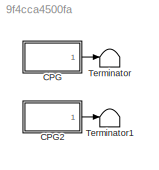
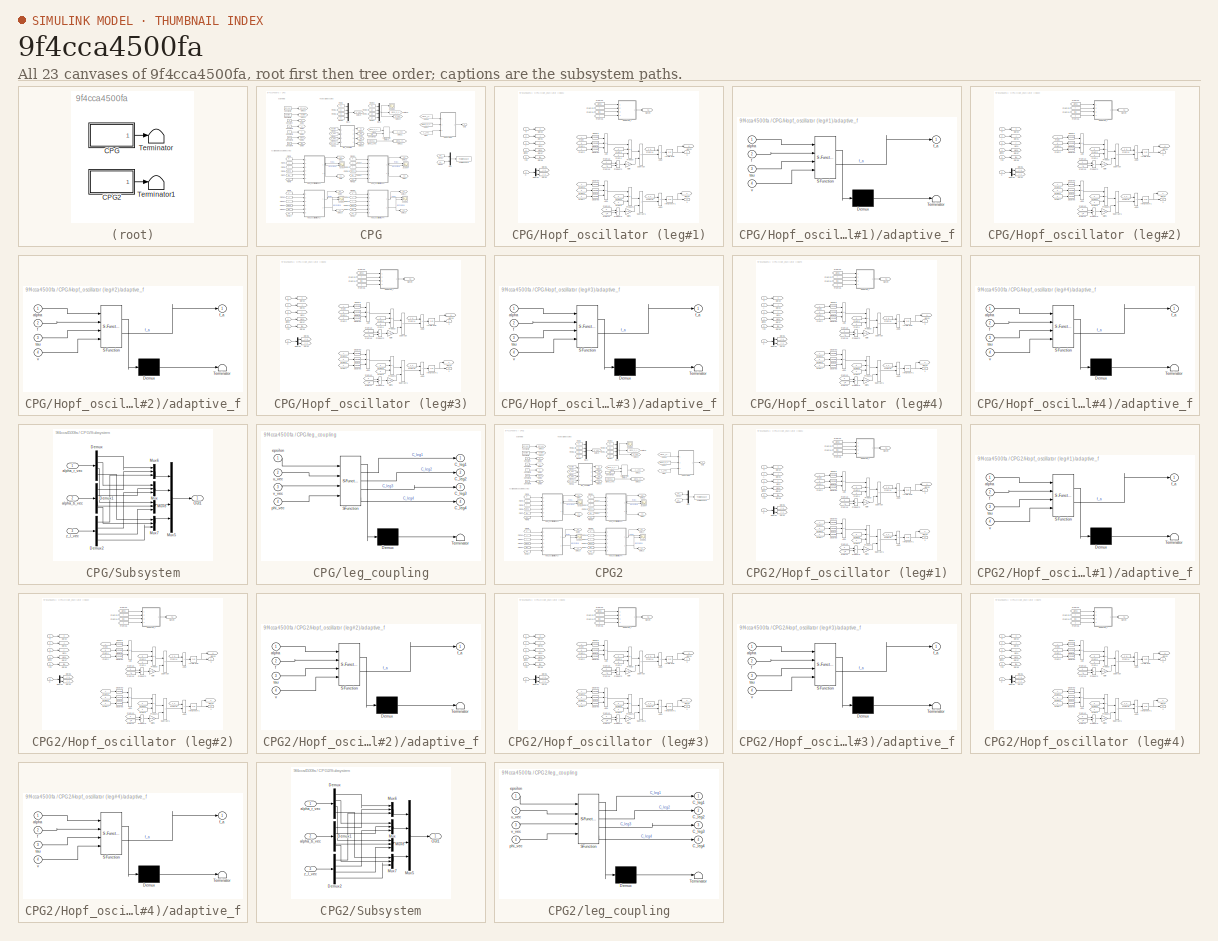
[diagram: thumbnail index - all 23 canvases of the model, root first then tree order]
MODEL slx_9f4cca4500fa
KIND model
CONFIG AbsTol = auto
CONFIG EnableMultiTasking = off
CONFIG FixedStep = auto
CONFIG MaxStep = auto
CONFIG MinStep = auto
CONFIG RelTol = 1e-3
CONFIG SampleTimeConstraint = Unconstrained
CONFIG SolverName = VariableStepAuto
CONFIG StartTime = 0.0
CONFIG StopTime = 5
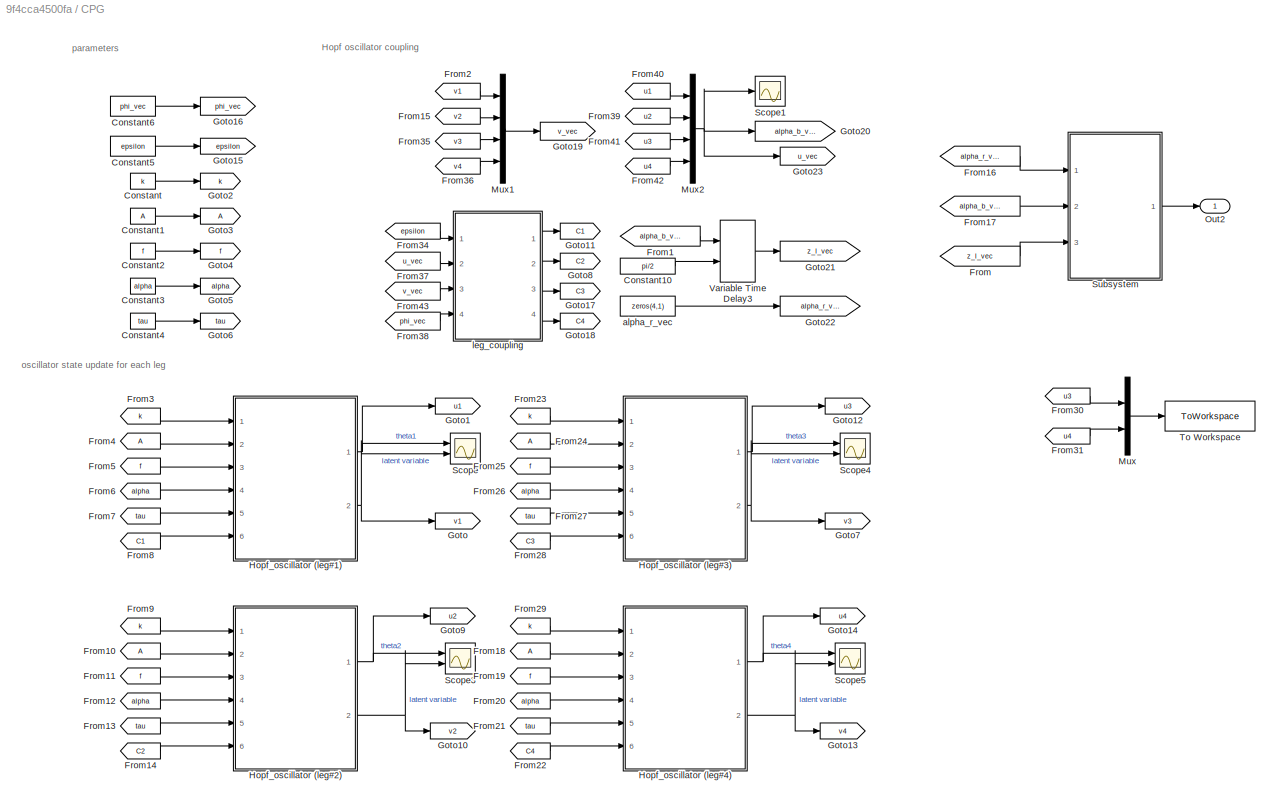
BLOCK [SubSystem] CPG
  Ports = [0, 1]
  RequestExecContextInheritance = off
BLOCK [Constant] CPG/Constant
  Value = k
BLOCK [Constant] CPG/Constant1
  Value = A
BLOCK [Constant] CPG/Constant10
  Value = pi/2
BLOCK [Constant] CPG/Constant2
  Value = f
BLOCK [Constant] CPG/Constant3
  Value = alpha
BLOCK [Constant] CPG/Constant4
  Value = tau
BLOCK [Constant] CPG/Constant5
  Value = epsilon
BLOCK [Constant] CPG/Constant6
  Value = phi_vec
BLOCK [From] CPG/From
  GotoTag = z_l_vec
BLOCK [From] CPG/From1
  GotoTag = alpha_b_vec
BLOCK [From] CPG/From10
BLOCK [From] CPG/From11
  GotoTag = f
BLOCK [From] CPG/From12
  GotoTag = alpha
BLOCK [From] CPG/From13
  GotoTag = tau
BLOCK [From] CPG/From14
  GotoTag = C2
BLOCK [From] CPG/From15
  GotoTag = v2
BLOCK [From] CPG/From16
  GotoTag = alpha_r_vec
BLOCK [From] CPG/From17
  GotoTag = alpha_b_vec
BLOCK [From] CPG/From18
BLOCK [From] CPG/From19
  GotoTag = f
BLOCK [From] CPG/From2
  GotoTag = v1
BLOCK [From] CPG/From20
  GotoTag = alpha
BLOCK [From] CPG/From21
  GotoTag = tau
BLOCK [From] CPG/From22
  GotoTag = C4
BLOCK [From] CPG/From23
  GotoTag = k
BLOCK [From] CPG/From24
BLOCK [From] CPG/From25
  GotoTag = f
BLOCK [From] CPG/From26
  GotoTag = alpha
BLOCK [From] CPG/From27
  GotoTag = tau
BLOCK [From] CPG/From28
  GotoTag = C3
BLOCK [From] CPG/From29
  GotoTag = k
BLOCK [From] CPG/From3
  GotoTag = k
BLOCK [From] CPG/From30
  GotoTag = u3
BLOCK [From] CPG/From31
  GotoTag = u4
BLOCK [From] CPG/From34
  GotoTag = epsilon
BLOCK [From] CPG/From35
  GotoTag = v3
BLOCK [From] CPG/From36
  GotoTag = v4
BLOCK [From] CPG/From37
  GotoTag = u_vec
BLOCK [From] CPG/From38
  GotoTag = phi_vec
BLOCK [From] CPG/From39
  GotoTag = u2
BLOCK [From] CPG/From4
BLOCK [From] CPG/From40
  GotoTag = u1
BLOCK [From] CPG/From41
  GotoTag = u3
BLOCK [From] CPG/From42
  GotoTag = u4
BLOCK [From] CPG/From43
  GotoTag = v_vec
BLOCK [From] CPG/From5
  GotoTag = f
BLOCK [From] CPG/From6
  GotoTag = alpha
BLOCK [From] CPG/From7
  GotoTag = tau
BLOCK [From] CPG/From8
  GotoTag = C1
BLOCK [From] CPG/From9
  GotoTag = k
BLOCK [Goto] CPG/Goto
  GotoTag = v1
BLOCK [Goto] CPG/Goto1
  GotoTag = u1
BLOCK [Goto] CPG/Goto10
  GotoTag = v2
BLOCK [Goto] CPG/Goto11
  GotoTag = C1
BLOCK [Goto] CPG/Goto12
  GotoTag = u3
BLOCK [Goto] CPG/Goto13
  GotoTag = v4
BLOCK [Goto] CPG/Goto14
  GotoTag = u4
BLOCK [Goto] CPG/Goto15
  GotoTag = epsilon
BLOCK [Goto] CPG/Goto16
  GotoTag = phi_vec
BLOCK [Goto] CPG/Goto17
  GotoTag = C3
BLOCK [Goto] CPG/Goto18
  GotoTag = C4
BLOCK [Goto] CPG/Goto19
  GotoTag = v_vec
BLOCK [Goto] CPG/Goto2
  GotoTag = k
BLOCK [Goto] CPG/Goto20
  GotoTag = alpha_b_vec
BLOCK [Goto] CPG/Goto21
  GotoTag = z_l_vec
BLOCK [Goto] CPG/Goto22
  GotoTag = alpha_r_vec
BLOCK [Goto] CPG/Goto23
  GotoTag = u_vec
BLOCK [Goto] CPG/Goto3
BLOCK [Goto] CPG/Goto4
  GotoTag = f
BLOCK [Goto] CPG/Goto5
  GotoTag = alpha
BLOCK [Goto] CPG/Goto6
  GotoTag = tau
BLOCK [Goto] CPG/Goto7
  GotoTag = v3
BLOCK [Goto] CPG/Goto8
  GotoTag = C2
BLOCK [Goto] CPG/Goto9
  GotoTag = u2
BLOCK [SubSystem] CPG/Hopf_oscillator (leg#1)
  Ports = [6, 2]
  RequestExecContextInheritance = off
BLOCK [Inport] CPG/Hopf_oscillator (leg#1)/A
  Port = 2
BLOCK [Sum] CPG/Hopf_oscillator (leg#1)/Add
  IconShape = rectangular
  Inputs = +--
  Ports = [3, 1]
BLOCK [Sum] CPG/Hopf_oscillator (leg#1)/Add1
  IconShape = rectangular
  Inputs = +--
  Ports = [3, 1]
BLOCK [Sum] CPG/Hopf_oscillator (leg#1)/Add2
  IconShape = rectangular
  Ports = [2, 1]
BLOCK [Sum] CPG/Hopf_oscillator (leg#1)/Add3
  IconShape = rectangular
  Ports = [2, 1]
BLOCK [Inport] CPG/Hopf_oscillator (leg#1)/C
  Port = 6
BLOCK [Demux] CPG/Hopf_oscillator (leg#1)/Demux
  Outputs = 2
  Ports = [1, 2]
BLOCK [From] CPG/Hopf_oscillator (leg#1)/From
BLOCK [From] CPG/Hopf_oscillator (leg#1)/From1
  GotoTag = u
BLOCK [From] CPG/Hopf_oscillator (leg#1)/From10
  GotoTag = v
BLOCK [From] CPG/Hopf_oscillator (leg#1)/From11
  GotoTag = f_a
BLOCK [From] CPG/Hopf_oscillator (leg#1)/From12
  GotoTag = u
BLOCK [From] CPG/Hopf_oscillator (leg#1)/From14
  GotoTag = c_u
BLOCK [From] CPG/Hopf_oscillator (leg#1)/From15
  GotoTag = c_v
BLOCK [From] CPG/Hopf_oscillator (leg#1)/From16
  GotoTag = f_a
BLOCK [From] CPG/Hopf_oscillator (leg#1)/From2
  GotoTag = v
BLOCK [From] CPG/Hopf_oscillator (leg#1)/From22
  GotoTag = alpha
BLOCK [From] CPG/Hopf_oscillator (leg#1)/From23
  GotoTag = f
BLOCK [From] CPG/Hopf_oscillator (leg#1)/From24
  GotoTag = tau
BLOCK [From] CPG/Hopf_oscillator (leg#1)/From25
  GotoTag = v
BLOCK [From] CPG/Hopf_oscillator (leg#1)/From3
  GotoTag = k
BLOCK [From] CPG/Hopf_oscillator (leg#1)/From4
  GotoTag = u
BLOCK [From] CPG/Hopf_oscillator (leg#1)/From5
BLOCK [From] CPG/Hopf_oscillator (leg#1)/From6
  GotoTag = u
BLOCK [From] CPG/Hopf_oscillator (leg#1)/From7
  GotoTag = v
BLOCK [From] CPG/Hopf_oscillator (leg#1)/From8
  GotoTag = k
BLOCK [From] CPG/Hopf_oscillator (leg#1)/From9
  GotoTag = v
BLOCK [Gain] CPG/Hopf_oscillator (leg#1)/Gain
  Gain = 2*pi
BLOCK [Gain] CPG/Hopf_oscillator (leg#1)/Gain1
  Gain = 2*pi
BLOCK [Goto] CPG/Hopf_oscillator (leg#1)/Goto
  GotoTag = f
BLOCK [Goto] CPG/Hopf_oscillator (leg#1)/Goto1
BLOCK [Goto] CPG/Hopf_oscillator (leg#1)/Goto2
  GotoTag = k
BLOCK [Goto] CPG/Hopf_oscillator (leg#1)/Goto3
  GotoTag = u
BLOCK [Goto] CPG/Hopf_oscillator (leg#1)/Goto4
  GotoTag = v
BLOCK [Goto] CPG/Hopf_oscillator (leg#1)/Goto5
  GotoTag = c_u
BLOCK [Goto] CPG/Hopf_oscillator (leg#1)/Goto6
  GotoTag = c_v
BLOCK [Goto] CPG/Hopf_oscillator (leg#1)/Goto7
  GotoTag = alpha
BLOCK [Goto] CPG/Hopf_oscillator (leg#1)/Goto8
  GotoTag = tau
BLOCK [Goto] CPG/Hopf_oscillator (leg#1)/Goto9
  GotoTag = f_a
BLOCK [Integrator] CPG/Hopf_oscillator (leg#1)/Integrator
  InitialCondition = init_state(1)
  Ports = [1, 1]
BLOCK [Integrator] CPG/Hopf_oscillator (leg#1)/Integrator1
  InitialCondition = init_state(2)
  Ports = [1, 1]
BLOCK [Product] CPG/Hopf_oscillator (leg#1)/Product
  Inputs = 3
  Ports = [3, 1]
BLOCK [Product] CPG/Hopf_oscillator (leg#1)/Product1
  Inputs = 3
  Ports = [3, 1]
BLOCK [Product] CPG/Hopf_oscillator (leg#1)/Product2
  Ports = [2, 1]
BLOCK [Product] CPG/Hopf_oscillator (leg#1)/Product3
  Ports = [2, 1]
BLOCK [Math] CPG/Hopf_oscillator (leg#1)/Square
  Operator = square
  Ports = [1, 1]
BLOCK [Math] CPG/Hopf_oscillator (leg#1)/Square1
  Operator = square
  Ports = [1, 1]
BLOCK [Math] CPG/Hopf_oscillator (leg#1)/Square2
  Operator = square
  Ports = [1, 1]
BLOCK [Math] CPG/Hopf_oscillator (leg#1)/Square3
  Operator = square
  Ports = [1, 1]
BLOCK [Math] CPG/Hopf_oscillator (leg#1)/Square4
  Operator = square
  Ports = [1, 1]
BLOCK [Math] CPG/Hopf_oscillator (leg#1)/Square5
  Operator = square
  Ports = [1, 1]
BLOCK [Sum] CPG/Hopf_oscillator (leg#1)/Subtract
  IconShape = rectangular
  Inputs = +-
  Ports = [2, 1]
BLOCK [Sum] CPG/Hopf_oscillator (leg#1)/Subtract1
  IconShape = rectangular
  Ports = [2, 1]
BLOCK [SubSystem] CPG/Hopf_oscillator (leg#1)/adaptive_f
  ErrorFcn = Stateflow.Translate.translate
  PermitHierarchicalResolution = ExplicitOnly
  Ports = [4, 1]
  RequestExecContextInheritance = off
  SFBlockType = MATLAB Function
  TreatAsAtomicUnit = on
BLOCK [Demux] CPG/Hopf_oscillator (leg#1)/adaptive_f/ Demux 
  Outputs = 1
  Ports = [1, 1]
BLOCK [S-Function] CPG/Hopf_oscillator (leg#1)/adaptive_f/ SFunction 
  EnableBusSupport = on
  FunctionName = sf_sfun
  PortCounts = [4 2]
  Ports = [4, 2]
  SFcnIsStateOwnerBlock = off
  SFunctionDeploymentMode = off
  Tag = Stateflow S-Function 6
BLOCK [Terminator] CPG/Hopf_oscillator (leg#1)/adaptive_f/ Terminator 
BLOCK [Inport] CPG/Hopf_oscillator (leg#1)/adaptive_f/alpha
BLOCK [Inport] CPG/Hopf_oscillator (leg#1)/adaptive_f/f
  Port = 2
BLOCK [Outport] CPG/Hopf_oscillator (leg#1)/adaptive_f/f_a
BLOCK [Inport] CPG/Hopf_oscillator (leg#1)/adaptive_f/tau
  Port = 3
BLOCK [Inport] CPG/Hopf_oscillator (leg#1)/adaptive_f/v
  Port = 4
BLOCK [Inport] CPG/Hopf_oscillator (leg#1)/alpha
  Port = 4
BLOCK [Inport] CPG/Hopf_oscillator (leg#1)/f
  Port = 3
BLOCK [Inport] CPG/Hopf_oscillator (leg#1)/k
BLOCK [Inport] CPG/Hopf_oscillator (leg#1)/tau
  Port = 5
BLOCK [Outport] CPG/Hopf_oscillator (leg#1)/u
BLOCK [Outport] CPG/Hopf_oscillator (leg#1)/v
  Port = 2
BLOCK [SubSystem] CPG/Hopf_oscillator (leg#2)
  Ports = [6, 2]
  RequestExecContextInheritance = off
BLOCK [Inport] CPG/Hopf_oscillator (leg#2)/A
  Port = 2
BLOCK [Sum] CPG/Hopf_oscillator (leg#2)/Add
  IconShape = rectangular
  Inputs = +--
  Ports = [3, 1]
BLOCK [Sum] CPG/Hopf_oscillator (leg#2)/Add1
  IconShape = rectangular
  Inputs = +--
  Ports = [3, 1]
BLOCK [Sum] CPG/Hopf_oscillator (leg#2)/Add2
  IconShape = rectangular
  Ports = [2, 1]
BLOCK [Sum] CPG/Hopf_oscillator (leg#2)/Add3
  IconShape = rectangular
  Ports = [2, 1]
BLOCK [Inport] CPG/Hopf_oscillator (leg#2)/C
  Port = 6
BLOCK [Demux] CPG/Hopf_oscillator (leg#2)/Demux
  Outputs = 2
  Ports = [1, 2]
BLOCK [From] CPG/Hopf_oscillator (leg#2)/From
BLOCK [From] CPG/Hopf_oscillator (leg#2)/From1
  GotoTag = u
BLOCK [From] CPG/Hopf_oscillator (leg#2)/From10
  GotoTag = v
BLOCK [From] CPG/Hopf_oscillator (leg#2)/From11
  GotoTag = f_a
BLOCK [From] CPG/Hopf_oscillator (leg#2)/From12
  GotoTag = u
BLOCK [From] CPG/Hopf_oscillator (leg#2)/From14
  GotoTag = c_u
BLOCK [From] CPG/Hopf_oscillator (leg#2)/From15
  GotoTag = c_v
BLOCK [From] CPG/Hopf_oscillator (leg#2)/From16
  GotoTag = f_a
BLOCK [From] CPG/Hopf_oscillator (leg#2)/From2
  GotoTag = v
BLOCK [From] CPG/Hopf_oscillator (leg#2)/From22
  GotoTag = alpha
BLOCK [From] CPG/Hopf_oscillator (leg#2)/From23
  GotoTag = f
BLOCK [From] CPG/Hopf_oscillator (leg#2)/From24
  GotoTag = tau
BLOCK [From] CPG/Hopf_oscillator (leg#2)/From25
  GotoTag = v
BLOCK [From] CPG/Hopf_oscillator (leg#2)/From3
  GotoTag = k
BLOCK [From] CPG/Hopf_oscillator (leg#2)/From4
  GotoTag = u
BLOCK [From] CPG/Hopf_oscillator (leg#2)/From5
BLOCK [From] CPG/Hopf_oscillator (leg#2)/From6
  GotoTag = u
BLOCK [From] CPG/Hopf_oscillator (leg#2)/From7
  GotoTag = v
BLOCK [From] CPG/Hopf_oscillator (leg#2)/From8
  GotoTag = k
BLOCK [From] CPG/Hopf_oscillator (leg#2)/From9
  GotoTag = v
BLOCK [Gain] CPG/Hopf_oscillator (leg#2)/Gain
  Gain = 2*pi
BLOCK [Gain] CPG/Hopf_oscillator (leg#2)/Gain1
  Gain = 2*pi
BLOCK [Goto] CPG/Hopf_oscillator (leg#2)/Goto
  GotoTag = f
BLOCK [Goto] CPG/Hopf_oscillator (leg#2)/Goto1
BLOCK [Goto] CPG/Hopf_oscillator (leg#2)/Goto2
  GotoTag = k
BLOCK [Goto] CPG/Hopf_oscillator (leg#2)/Goto3
  GotoTag = u
BLOCK [Goto] CPG/Hopf_oscillator (leg#2)/Goto4
  GotoTag = v
BLOCK [Goto] CPG/Hopf_oscillator (leg#2)/Goto5
  GotoTag = c_u
BLOCK [Goto] CPG/Hopf_oscillator (leg#2)/Goto6
  GotoTag = c_v
BLOCK [Goto] CPG/Hopf_oscillator (leg#2)/Goto7
  GotoTag = alpha
BLOCK [Goto] CPG/Hopf_oscillator (leg#2)/Goto8
  GotoTag = tau
BLOCK [Goto] CPG/Hopf_oscillator (leg#2)/Goto9
  GotoTag = f_a
BLOCK [Integrator] CPG/Hopf_oscillator (leg#2)/Integrator
  InitialCondition = init_state(3)
  Ports = [1, 1]
BLOCK [Integrator] CPG/Hopf_oscillator (leg#2)/Integrator1
  InitialCondition = init_state(4)
  Ports = [1, 1]
BLOCK [Product] CPG/Hopf_oscillator (leg#2)/Product
  Inputs = 3
  Ports = [3, 1]
BLOCK [Product] CPG/Hopf_oscillator (leg#2)/Product1
  Inputs = 3
  Ports = [3, 1]
BLOCK [Product] CPG/Hopf_oscillator (leg#2)/Product2
  Ports = [2, 1]
BLOCK [Product] CPG/Hopf_oscillator (leg#2)/Product3
  Ports = [2, 1]
BLOCK [Math] CPG/Hopf_oscillator (leg#2)/Square
  Operator = square
  Ports = [1, 1]
BLOCK [Math] CPG/Hopf_oscillator (leg#2)/Square1
  Operator = square
  Ports = [1, 1]
BLOCK [Math] CPG/Hopf_oscillator (leg#2)/Square2
  Operator = square
  Ports = [1, 1]
BLOCK [Math] CPG/Hopf_oscillator (leg#2)/Square3
  Operator = square
  Ports = [1, 1]
BLOCK [Math] CPG/Hopf_oscillator (leg#2)/Square4
  Operator = square
  Ports = [1, 1]
BLOCK [Math] CPG/Hopf_oscillator (leg#2)/Square5
  Operator = square
  Ports = [1, 1]
BLOCK [Sum] CPG/Hopf_oscillator (leg#2)/Subtract
  IconShape = rectangular
  Inputs = +-
  Ports = [2, 1]
BLOCK [Sum] CPG/Hopf_oscillator (leg#2)/Subtract1
  IconShape = rectangular
  Ports = [2, 1]
BLOCK [SubSystem] CPG/Hopf_oscillator (leg#2)/adaptive_f
  ErrorFcn = Stateflow.Translate.translate
  PermitHierarchicalResolution = ExplicitOnly
  Ports = [4, 1]
  RequestExecContextInheritance = off
  SFBlockType = MATLAB Function
  TreatAsAtomicUnit = on
BLOCK [Demux] CPG/Hopf_oscillator (leg#2)/adaptive_f/ Demux 
  Outputs = 1
  Ports = [1, 1]
BLOCK [S-Function] CPG/Hopf_oscillator (leg#2)/adaptive_f/ SFunction 
  EnableBusSupport = on
  FunctionName = sf_sfun
  PortCounts = [4 2]
  Ports = [4, 2]
  SFcnIsStateOwnerBlock = off
  SFunctionDeploymentMode = off
  Tag = Stateflow S-Function 11
BLOCK [Terminator] CPG/Hopf_oscillator (leg#2)/adaptive_f/ Terminator 
BLOCK [Inport] CPG/Hopf_oscillator (leg#2)/adaptive_f/alpha
BLOCK [Inport] CPG/Hopf_oscillator (leg#2)/adaptive_f/f
  Port = 2
BLOCK [Outport] CPG/Hopf_oscillator (leg#2)/adaptive_f/f_a
BLOCK [Inport] CPG/Hopf_oscillator (leg#2)/adaptive_f/tau
  Port = 3
BLOCK [Inport] CPG/Hopf_oscillator (leg#2)/adaptive_f/v
  Port = 4
BLOCK [Inport] CPG/Hopf_oscillator (leg#2)/alpha
  Port = 4
BLOCK [Inport] CPG/Hopf_oscillator (leg#2)/f
  Port = 3
BLOCK [Inport] CPG/Hopf_oscillator (leg#2)/k
BLOCK [Inport] CPG/Hopf_oscillator (leg#2)/tau
  Port = 5
BLOCK [Outport] CPG/Hopf_oscillator (leg#2)/u
BLOCK [Outport] CPG/Hopf_oscillator (leg#2)/v
  Port = 2
BLOCK [SubSystem] CPG/Hopf_oscillator (leg#3)
  Ports = [6, 2]
  RequestExecContextInheritance = off
BLOCK [Inport] CPG/Hopf_oscillator (leg#3)/A
  Port = 2
BLOCK [Sum] CPG/Hopf_oscillator (leg#3)/Add
  IconShape = rectangular
  Inputs = +--
  Ports = [3, 1]
BLOCK [Sum] CPG/Hopf_oscillator (leg#3)/Add1
  IconShape = rectangular
  Inputs = +--
  Ports = [3, 1]
BLOCK [Sum] CPG/Hopf_oscillator (leg#3)/Add2
  IconShape = rectangular
  Ports = [2, 1]
BLOCK [Sum] CPG/Hopf_oscillator (leg#3)/Add3
  IconShape = rectangular
  Ports = [2, 1]
BLOCK [Inport] CPG/Hopf_oscillator (leg#3)/C
  Port = 6
BLOCK [Demux] CPG/Hopf_oscillator (leg#3)/Demux
  Outputs = 2
  Ports = [1, 2]
BLOCK [From] CPG/Hopf_oscillator (leg#3)/From
BLOCK [From] CPG/Hopf_oscillator (leg#3)/From1
  GotoTag = u
BLOCK [From] CPG/Hopf_oscillator (leg#3)/From10
  GotoTag = v
BLOCK [From] CPG/Hopf_oscillator (leg#3)/From11
  GotoTag = f_a
BLOCK [From] CPG/Hopf_oscillator (leg#3)/From12
  GotoTag = u
BLOCK [From] CPG/Hopf_oscillator (leg#3)/From14
  GotoTag = c_u
BLOCK [From] CPG/Hopf_oscillator (leg#3)/From15
  GotoTag = c_v
BLOCK [From] CPG/Hopf_oscillator (leg#3)/From16
  GotoTag = f_a
BLOCK [From] CPG/Hopf_oscillator (leg#3)/From2
  GotoTag = v
BLOCK [From] CPG/Hopf_oscillator (leg#3)/From22
  GotoTag = alpha
BLOCK [From] CPG/Hopf_oscillator (leg#3)/From23
  GotoTag = f
BLOCK [From] CPG/Hopf_oscillator (leg#3)/From24
  GotoTag = tau
BLOCK [From] CPG/Hopf_oscillator (leg#3)/From25
  GotoTag = v
BLOCK [From] CPG/Hopf_oscillator (leg#3)/From3
  GotoTag = k
BLOCK [From] CPG/Hopf_oscillator (leg#3)/From4
  GotoTag = u
BLOCK [From] CPG/Hopf_oscillator (leg#3)/From5
BLOCK [From] CPG/Hopf_oscillator (leg#3)/From6
  GotoTag = u
BLOCK [From] CPG/Hopf_oscillator (leg#3)/From7
  GotoTag = v
BLOCK [From] CPG/Hopf_oscillator (leg#3)/From8
  GotoTag = k
BLOCK [From] CPG/Hopf_oscillator (leg#3)/From9
  GotoTag = v
BLOCK [Gain] CPG/Hopf_oscillator (leg#3)/Gain
  Gain = 2*pi
BLOCK [Gain] CPG/Hopf_oscillator (leg#3)/Gain1
  Gain = 2*pi
BLOCK [Goto] CPG/Hopf_oscillator (leg#3)/Goto
  GotoTag = f
BLOCK [Goto] CPG/Hopf_oscillator (leg#3)/Goto1
BLOCK [Goto] CPG/Hopf_oscillator (leg#3)/Goto2
  GotoTag = k
BLOCK [Goto] CPG/Hopf_oscillator (leg#3)/Goto3
  GotoTag = u
BLOCK [Goto] CPG/Hopf_oscillator (leg#3)/Goto4
  GotoTag = v
BLOCK [Goto] CPG/Hopf_oscillator (leg#3)/Goto5
  GotoTag = c_u
BLOCK [Goto] CPG/Hopf_oscillator (leg#3)/Goto6
  GotoTag = c_v
BLOCK [Goto] CPG/Hopf_oscillator (leg#3)/Goto7
  GotoTag = alpha
BLOCK [Goto] CPG/Hopf_oscillator (leg#3)/Goto8
  GotoTag = tau
BLOCK [Goto] CPG/Hopf_oscillator (leg#3)/Goto9
  GotoTag = f_a
BLOCK [Integrator] CPG/Hopf_oscillator (leg#3)/Integrator
  InitialCondition = init_state(5)
  Ports = [1, 1]
BLOCK [Integrator] CPG/Hopf_oscillator (leg#3)/Integrator1
  InitialCondition = init_state(6)
  Ports = [1, 1]
BLOCK [Product] CPG/Hopf_oscillator (leg#3)/Product
  Inputs = 3
  Ports = [3, 1]
BLOCK [Product] CPG/Hopf_oscillator (leg#3)/Product1
  Inputs = 3
  Ports = [3, 1]
BLOCK [Product] CPG/Hopf_oscillator (leg#3)/Product2
  Ports = [2, 1]
BLOCK [Product] CPG/Hopf_oscillator (leg#3)/Product3
  Ports = [2, 1]
BLOCK [Math] CPG/Hopf_oscillator (leg#3)/Square
  Operator = square
  Ports = [1, 1]
BLOCK [Math] CPG/Hopf_oscillator (leg#3)/Square1
  Operator = square
  Ports = [1, 1]
BLOCK [Math] CPG/Hopf_oscillator (leg#3)/Square2
  Operator = square
  Ports = [1, 1]
BLOCK [Math] CPG/Hopf_oscillator (leg#3)/Square3
  Operator = square
  Ports = [1, 1]
BLOCK [Math] CPG/Hopf_oscillator (leg#3)/Square4
  Operator = square
  Ports = [1, 1]
BLOCK [Math] CPG/Hopf_oscillator (leg#3)/Square5
  Operator = square
  Ports = [1, 1]
BLOCK [Sum] CPG/Hopf_oscillator (leg#3)/Subtract
  IconShape = rectangular
  Inputs = +-
  Ports = [2, 1]
BLOCK [Sum] CPG/Hopf_oscillator (leg#3)/Subtract1
  IconShape = rectangular
  Ports = [2, 1]
BLOCK [SubSystem] CPG/Hopf_oscillator (leg#3)/adaptive_f
  ErrorFcn = Stateflow.Translate.translate
  PermitHierarchicalResolution = ExplicitOnly
  Ports = [4, 1]
  RequestExecContextInheritance = off
  SFBlockType = MATLAB Function
  TreatAsAtomicUnit = on
BLOCK [Demux] CPG/Hopf_oscillator (leg#3)/adaptive_f/ Demux 
  Outputs = 1
  Ports = [1, 1]
BLOCK [S-Function] CPG/Hopf_oscillator (leg#3)/adaptive_f/ SFunction 
  EnableBusSupport = on
  FunctionName = sf_sfun
  PortCounts = [4 2]
  Ports = [4, 2]
  SFcnIsStateOwnerBlock = off
  SFunctionDeploymentMode = off
  Tag = Stateflow S-Function 12
BLOCK [Terminator] CPG/Hopf_oscillator (leg#3)/adaptive_f/ Terminator 
BLOCK [Inport] CPG/Hopf_oscillator (leg#3)/adaptive_f/alpha
BLOCK [Inport] CPG/Hopf_oscillator (leg#3)/adaptive_f/f
  Port = 2
BLOCK [Outport] CPG/Hopf_oscillator (leg#3)/adaptive_f/f_a
BLOCK [Inport] CPG/Hopf_oscillator (leg#3)/adaptive_f/tau
  Port = 3
BLOCK [Inport] CPG/Hopf_oscillator (leg#3)/adaptive_f/v
  Port = 4
BLOCK [Inport] CPG/Hopf_oscillator (leg#3)/alpha
  Port = 4
BLOCK [Inport] CPG/Hopf_oscillator (leg#3)/f
  Port = 3
BLOCK [Inport] CPG/Hopf_oscillator (leg#3)/k
BLOCK [Inport] CPG/Hopf_oscillator (leg#3)/tau
  Port = 5
BLOCK [Outport] CPG/Hopf_oscillator (leg#3)/u
BLOCK [Outport] CPG/Hopf_oscillator (leg#3)/v
  Port = 2
BLOCK [SubSystem] CPG/Hopf_oscillator (leg#4)
  Ports = [6, 2]
  RequestExecContextInheritance = off
BLOCK [Inport] CPG/Hopf_oscillator (leg#4)/A
  Port = 2
BLOCK [Sum] CPG/Hopf_oscillator (leg#4)/Add
  IconShape = rectangular
  Inputs = +--
  Ports = [3, 1]
BLOCK [Sum] CPG/Hopf_oscillator (leg#4)/Add1
  IconShape = rectangular
  Inputs = +--
  Ports = [3, 1]
BLOCK [Sum] CPG/Hopf_oscillator (leg#4)/Add2
  IconShape = rectangular
  Ports = [2, 1]
BLOCK [Sum] CPG/Hopf_oscillator (leg#4)/Add3
  IconShape = rectangular
  Ports = [2, 1]
BLOCK [Inport] CPG/Hopf_oscillator (leg#4)/C
  Port = 6
BLOCK [Demux] CPG/Hopf_oscillator (leg#4)/Demux
  Outputs = 2
  Ports = [1, 2]
BLOCK [From] CPG/Hopf_oscillator (leg#4)/From
BLOCK [From] CPG/Hopf_oscillator (leg#4)/From1
  GotoTag = u
BLOCK [From] CPG/Hopf_oscillator (leg#4)/From10
  GotoTag = v
BLOCK [From] CPG/Hopf_oscillator (leg#4)/From11
  GotoTag = f_a
BLOCK [From] CPG/Hopf_oscillator (leg#4)/From12
  GotoTag = u
BLOCK [From] CPG/Hopf_oscillator (leg#4)/From14
  GotoTag = c_u
BLOCK [From] CPG/Hopf_oscillator (leg#4)/From15
  GotoTag = c_v
BLOCK [From] CPG/Hopf_oscillator (leg#4)/From16
  GotoTag = f_a
BLOCK [From] CPG/Hopf_oscillator (leg#4)/From2
  GotoTag = v
BLOCK [From] CPG/Hopf_oscillator (leg#4)/From22
  GotoTag = alpha
BLOCK [From] CPG/Hopf_oscillator (leg#4)/From23
  GotoTag = f
BLOCK [From] CPG/Hopf_oscillator (leg#4)/From24
  GotoTag = tau
BLOCK [From] CPG/Hopf_oscillator (leg#4)/From25
  GotoTag = v
BLOCK [From] CPG/Hopf_oscillator (leg#4)/From3
  GotoTag = k
BLOCK [From] CPG/Hopf_oscillator (leg#4)/From4
  GotoTag = u
BLOCK [From] CPG/Hopf_oscillator (leg#4)/From5
BLOCK [From] CPG/Hopf_oscillator (leg#4)/From6
  GotoTag = u
BLOCK [From] CPG/Hopf_oscillator (leg#4)/From7
  GotoTag = v
BLOCK [From] CPG/Hopf_oscillator (leg#4)/From8
  GotoTag = k
BLOCK [From] CPG/Hopf_oscillator (leg#4)/From9
  GotoTag = v
BLOCK [Gain] CPG/Hopf_oscillator (leg#4)/Gain
  Gain = 2*pi
BLOCK [Gain] CPG/Hopf_oscillator (leg#4)/Gain1
  Gain = 2*pi
BLOCK [Goto] CPG/Hopf_oscillator (leg#4)/Goto
  GotoTag = f
BLOCK [Goto] CPG/Hopf_oscillator (leg#4)/Goto1
BLOCK [Goto] CPG/Hopf_oscillator (leg#4)/Goto2
  GotoTag = k
BLOCK [Goto] CPG/Hopf_oscillator (leg#4)/Goto3
  GotoTag = u
BLOCK [Goto] CPG/Hopf_oscillator (leg#4)/Goto4
  GotoTag = v
BLOCK [Goto] CPG/Hopf_oscillator (leg#4)/Goto5
  GotoTag = c_u
BLOCK [Goto] CPG/Hopf_oscillator (leg#4)/Goto6
  GotoTag = c_v
BLOCK [Goto] CPG/Hopf_oscillator (leg#4)/Goto7
  GotoTag = alpha
BLOCK [Goto] CPG/Hopf_oscillator (leg#4)/Goto8
  GotoTag = tau
BLOCK [Goto] CPG/Hopf_oscillator (leg#4)/Goto9
  GotoTag = f_a
BLOCK [Integrator] CPG/Hopf_oscillator (leg#4)/Integrator
  InitialCondition = init_state(7)
  Ports = [1, 1]
BLOCK [Integrator] CPG/Hopf_oscillator (leg#4)/Integrator1
  InitialCondition = init_state(8)
  Ports = [1, 1]
BLOCK [Product] CPG/Hopf_oscillator (leg#4)/Product
  Inputs = 3
  Ports = [3, 1]
BLOCK [Product] CPG/Hopf_oscillator (leg#4)/Product1
  Inputs = 3
  Ports = [3, 1]
BLOCK [Product] CPG/Hopf_oscillator (leg#4)/Product2
  Ports = [2, 1]
BLOCK [Product] CPG/Hopf_oscillator (leg#4)/Product3
  Ports = [2, 1]
BLOCK [Math] CPG/Hopf_oscillator (leg#4)/Square
  Operator = square
  Ports = [1, 1]
BLOCK [Math] CPG/Hopf_oscillator (leg#4)/Square1
  Operator = square
  Ports = [1, 1]
BLOCK [Math] CPG/Hopf_oscillator (leg#4)/Square2
  Operator = square
  Ports = [1, 1]
BLOCK [Math] CPG/Hopf_oscillator (leg#4)/Square3
  Operator = square
  Ports = [1, 1]
BLOCK [Math] CPG/Hopf_oscillator (leg#4)/Square4
  Operator = square
  Ports = [1, 1]
BLOCK [Math] CPG/Hopf_oscillator (leg#4)/Square5
  Operator = square
  Ports = [1, 1]
BLOCK [Sum] CPG/Hopf_oscillator (leg#4)/Subtract
  IconShape = rectangular
  Inputs = +-
  Ports = [2, 1]
BLOCK [Sum] CPG/Hopf_oscillator (leg#4)/Subtract1
  IconShape = rectangular
  Ports = [2, 1]
BLOCK [SubSystem] CPG/Hopf_oscillator (leg#4)/adaptive_f
  ErrorFcn = Stateflow.Translate.translate
  PermitHierarchicalResolution = ExplicitOnly
  Ports = [4, 1]
  RequestExecContextInheritance = off
  SFBlockType = MATLAB Function
  TreatAsAtomicUnit = on
BLOCK [Demux] CPG/Hopf_oscillator (leg#4)/adaptive_f/ Demux 
  Outputs = 1
  Ports = [1, 1]
BLOCK [S-Function] CPG/Hopf_oscillator (leg#4)/adaptive_f/ SFunction 
  EnableBusSupport = on
  FunctionName = sf_sfun
  PortCounts = [4 2]
  Ports = [4, 2]
  SFcnIsStateOwnerBlock = off
  SFunctionDeploymentMode = off
  Tag = Stateflow S-Function 13
BLOCK [Terminator] CPG/Hopf_oscillator (leg#4)/adaptive_f/ Terminator 
BLOCK [Inport] CPG/Hopf_oscillator (leg#4)/adaptive_f/alpha
BLOCK [Inport] CPG/Hopf_oscillator (leg#4)/adaptive_f/f
  Port = 2
BLOCK [Outport] CPG/Hopf_oscillator (leg#4)/adaptive_f/f_a
BLOCK [Inport] CPG/Hopf_oscillator (leg#4)/adaptive_f/tau
  Port = 3
BLOCK [Inport] CPG/Hopf_oscillator (leg#4)/adaptive_f/v
  Port = 4
BLOCK [Inport] CPG/Hopf_oscillator (leg#4)/alpha
  Port = 4
BLOCK [Inport] CPG/Hopf_oscillator (leg#4)/f
  Port = 3
BLOCK [Inport] CPG/Hopf_oscillator (leg#4)/k
BLOCK [Inport] CPG/Hopf_oscillator (leg#4)/tau
  Port = 5
BLOCK [Outport] CPG/Hopf_oscillator (leg#4)/u
BLOCK [Outport] CPG/Hopf_oscillator (leg#4)/v
  Port = 2
BLOCK [Mux] CPG/Mux
  DisplayOption = bar
  Inputs = 2
  Ports = [2, 1]
BLOCK [Mux] CPG/Mux1
  DisplayOption = bar
  Ports = [4, 1]
BLOCK [Mux] CPG/Mux2
  DisplayOption = bar
  Ports = [4, 1]
BLOCK [Outport] CPG/Out2
BLOCK [Scope] CPG/Scope
  Floating = off
  NumInputPorts = 2
  Ports = [2]
  ScopeSpecificationString = Simulink.scopes.TimeScopeBlockCfg('CurrentConfiguration', extmgr.ConfigurationSet(extmgr.Configuration('Core','General UI',true),extmgr.Configuration('Core','Source UI',true),extmgr.Configuration('Sources','WiredSimulink',true,'DataLoggingVariableName','ScopeData1'),extmgr.Configuration('Visuals','Time Domain',true,'SerializedDisplays',{struct('MinYLimReal','-2.50218','MaxYLimReal','2.50219','YLab...<+1502ch>
BLOCK [Scope] CPG/Scope1
  Floating = off
  NumInputPorts = 1
  Ports = [1]
  ScopeSpecificationString = Simulink.scopes.TimeScopeBlockCfg('CurrentConfiguration', extmgr.ConfigurationSet(extmgr.Configuration('Core','General UI',true),extmgr.Configuration('Core','Source UI',true),extmgr.Configuration('Sources','WiredSimulink',true,'DataLoggingVariableName','ScopeData2'),extmgr.Configuration('Visuals','Time Domain',true,'SerializedDisplays',{struct('MinYLimReal','-2.49996','MaxYLimReal','2.49992','YLab...<+1563ch>
BLOCK [Scope] CPG/Scope3
  Floating = off
  NumInputPorts = 2
  Ports = [2]
  ScopeSpecificationString = Simulink.scopes.TimeScopeBlockCfg('CurrentConfiguration', extmgr.ConfigurationSet(extmgr.Configuration('Core','General UI',true),extmgr.Configuration('Core','Source UI',true),extmgr.Configuration('Sources','WiredSimulink',true,'DataLoggingVariableName','ScopeData3'),extmgr.Configuration('Visuals','Time Domain',true,'SerializedDisplays',{struct('MinYLimReal','-1.25','MaxYLimReal','1.25','YLabelReal...<+1483ch>
BLOCK [Scope] CPG/Scope4
  Floating = off
  NumInputPorts = 2
  Ports = [2]
  ScopeSpecificationString = Simulink.scopes.TimeScopeBlockCfg('CurrentConfiguration', extmgr.ConfigurationSet(extmgr.Configuration('Core','General UI',true),extmgr.Configuration('Core','Source UI',true),extmgr.Configuration('Sources','WiredSimulink',true,'DataLoggingVariableName','ScopeData4'),extmgr.Configuration('Visuals','Time Domain',true,'SerializedDisplays',{struct('MinYLimReal','-1.25','MaxYLimReal','1.25','YLabelReal...<+1484ch>
BLOCK [Scope] CPG/Scope5
  Floating = off
  NumInputPorts = 2
  Ports = [2]
  ScopeSpecificationString = Simulink.scopes.TimeScopeBlockCfg('CurrentConfiguration', extmgr.ConfigurationSet(extmgr.Configuration('Core','General UI',true),extmgr.Configuration('Core','Source UI',true),extmgr.Configuration('Sources','WiredSimulink',true,'DataLoggingVariableName','ScopeData5'),extmgr.Configuration('Visuals','Time Domain',true,'SerializedDisplays',{struct('MinYLimReal','-1.25','MaxYLimReal','1.25','YLabelReal...<+1483ch>
BLOCK [SubSystem] CPG/Subsystem
  Ports = [3, 1]
  RequestExecContextInheritance = off
BLOCK [Demux] CPG/Subsystem/Demux
  Ports = [1, 4]
BLOCK [Demux] CPG/Subsystem/Demux1
  Ports = [1, 4]
BLOCK [Demux] CPG/Subsystem/Demux2
  Ports = [1, 4]
BLOCK [Mux] CPG/Subsystem/Mux
  DisplayOption = bar
  Inputs = 3
  Ports = [3, 1]
BLOCK [Mux] CPG/Subsystem/Mux5
  DisplayOption = bar
  Ports = [4, 1]
BLOCK [Mux] CPG/Subsystem/Mux6
  DisplayOption = bar
  Inputs = 3
  Ports = [3, 1]
BLOCK [Mux] CPG/Subsystem/Mux7
  DisplayOption = bar
  Inputs = 3
  Ports = [3, 1]
BLOCK [Mux] CPG/Subsystem/Mux8
  DisplayOption = bar
  Inputs = 3
  Ports = [3, 1]
BLOCK [Outport] CPG/Subsystem/Out1
BLOCK [Inport] CPG/Subsystem/alpha_b_vec
  Port = 2
BLOCK [Inport] CPG/Subsystem/alpha_r_vec
BLOCK [Inport] CPG/Subsystem/z_l_vec
  Port = 3
BLOCK [ToWorkspace] CPG/To Workspace
  FixptAsFi = on
  MaxDataPoints = inf
  Ports = [1]
  SampleTime = 0.01
  SaveFormat = Timeseries
  VariableName = CPG_out
BLOCK [VariableTransportDelay] CPG/Variable Time Delay3
  MaximumDelay = 10
  MaximumPoints = 4096
  Ports = [2, 1]
  ZeroDelay = on
BLOCK [Constant] CPG/alpha_r_vec
  Value = zeros(4,1)
BLOCK [SubSystem] CPG/leg_coupling
  ErrorFcn = Stateflow.Translate.translate
  PermitHierarchicalResolution = ExplicitOnly
  Ports = [4, 4]
  RequestExecContextInheritance = off
  SFBlockType = MATLAB Function
  TreatAsAtomicUnit = on
BLOCK [Demux] CPG/leg_coupling/ Demux 
  Outputs = 1
  Ports = [1, 1]
BLOCK [S-Function] CPG/leg_coupling/ SFunction 
  EnableBusSupport = on
  FunctionName = sf_sfun
  PortCounts = [4 5]
  Ports = [4, 5]
  SFcnIsStateOwnerBlock = off
  SFunctionDeploymentMode = off
  Tag = Stateflow S-Function 14
BLOCK [Terminator] CPG/leg_coupling/ Terminator 
BLOCK [Outport] CPG/leg_coupling/C_leg1
BLOCK [Outport] CPG/leg_coupling/C_leg2
  Port = 2
BLOCK [Outport] CPG/leg_coupling/C_leg3
  Port = 3
BLOCK [Outport] CPG/leg_coupling/C_leg4
  Port = 4
BLOCK [Inport] CPG/leg_coupling/epsilon
BLOCK [Inport] CPG/leg_coupling/phi_vec
  Port = 4
BLOCK [Inport] CPG/leg_coupling/u_vec
  Port = 2
BLOCK [Inport] CPG/leg_coupling/v_vec
  Port = 3
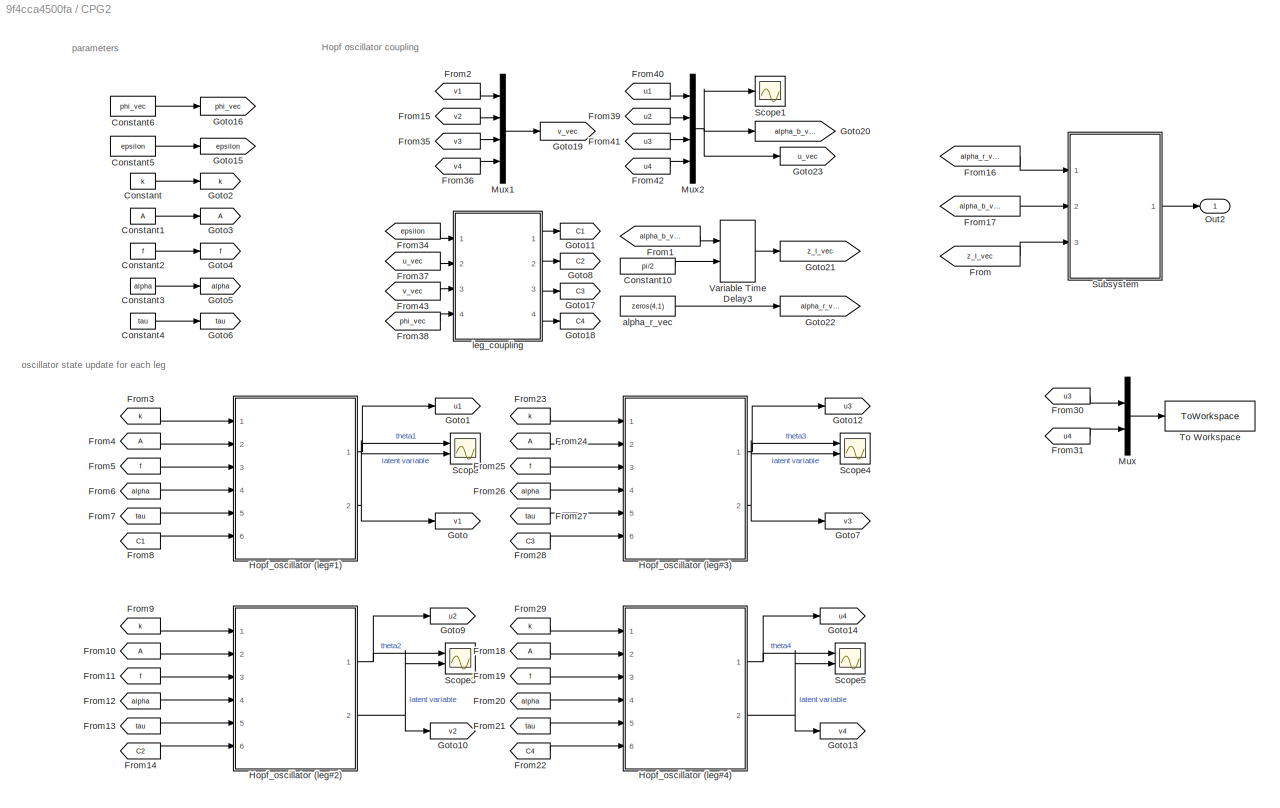
BLOCK [SubSystem] CPG2
  Ports = [0, 1]
  RequestExecContextInheritance = off
BLOCK [Constant] CPG2/Constant
  Value = k
BLOCK [Constant] CPG2/Constant1
  Value = A
BLOCK [Constant] CPG2/Constant10
  Value = pi/2
BLOCK [Constant] CPG2/Constant2
  Value = f
BLOCK [Constant] CPG2/Constant3
  Value = alpha
BLOCK [Constant] CPG2/Constant4
  Value = tau
BLOCK [Constant] CPG2/Constant5
  Value = epsilon
BLOCK [Constant] CPG2/Constant6
  Value = phi_vec
BLOCK [From] CPG2/From
  GotoTag = z_l_vec
BLOCK [From] CPG2/From1
  GotoTag = alpha_b_vec
BLOCK [From] CPG2/From10
BLOCK [From] CPG2/From11
  GotoTag = f
BLOCK [From] CPG2/From12
  GotoTag = alpha
BLOCK [From] CPG2/From13
  GotoTag = tau
BLOCK [From] CPG2/From14
  GotoTag = C2
BLOCK [From] CPG2/From15
  GotoTag = v2
BLOCK [From] CPG2/From16
  GotoTag = alpha_r_vec
BLOCK [From] CPG2/From17
  GotoTag = alpha_b_vec
BLOCK [From] CPG2/From18
BLOCK [From] CPG2/From19
  GotoTag = f
BLOCK [From] CPG2/From2
  GotoTag = v1
BLOCK [From] CPG2/From20
  GotoTag = alpha
BLOCK [From] CPG2/From21
  GotoTag = tau
BLOCK [From] CPG2/From22
  GotoTag = C4
BLOCK [From] CPG2/From23
  GotoTag = k
BLOCK [From] CPG2/From24
BLOCK [From] CPG2/From25
  GotoTag = f
BLOCK [From] CPG2/From26
  GotoTag = alpha
BLOCK [From] CPG2/From27
  GotoTag = tau
BLOCK [From] CPG2/From28
  GotoTag = C3
BLOCK [From] CPG2/From29
  GotoTag = k
BLOCK [From] CPG2/From3
  GotoTag = k
BLOCK [From] CPG2/From30
  GotoTag = u3
BLOCK [From] CPG2/From31
  GotoTag = u4
BLOCK [From] CPG2/From34
  GotoTag = epsilon
BLOCK [From] CPG2/From35
  GotoTag = v3
BLOCK [From] CPG2/From36
  GotoTag = v4
BLOCK [From] CPG2/From37
  GotoTag = u_vec
BLOCK [From] CPG2/From38
  GotoTag = phi_vec
BLOCK [From] CPG2/From39
  GotoTag = u2
BLOCK [From] CPG2/From4
BLOCK [From] CPG2/From40
  GotoTag = u1
BLOCK [From] CPG2/From41
  GotoTag = u3
BLOCK [From] CPG2/From42
  GotoTag = u4
BLOCK [From] CPG2/From43
  GotoTag = v_vec
BLOCK [From] CPG2/From5
  GotoTag = f
BLOCK [From] CPG2/From6
  GotoTag = alpha
BLOCK [From] CPG2/From7
  GotoTag = tau
BLOCK [From] CPG2/From8
  GotoTag = C1
BLOCK [From] CPG2/From9
  GotoTag = k
BLOCK [Goto] CPG2/Goto
  GotoTag = v1
BLOCK [Goto] CPG2/Goto1
  GotoTag = u1
BLOCK [Goto] CPG2/Goto10
  GotoTag = v2
BLOCK [Goto] CPG2/Goto11
  GotoTag = C1
BLOCK [Goto] CPG2/Goto12
  GotoTag = u3
BLOCK [Goto] CPG2/Goto13
  GotoTag = v4
BLOCK [Goto] CPG2/Goto14
  GotoTag = u4
BLOCK [Goto] CPG2/Goto15
  GotoTag = epsilon
BLOCK [Goto] CPG2/Goto16
  GotoTag = phi_vec
BLOCK [Goto] CPG2/Goto17
  GotoTag = C3
BLOCK [Goto] CPG2/Goto18
  GotoTag = C4
BLOCK [Goto] CPG2/Goto19
  GotoTag = v_vec
BLOCK [Goto] CPG2/Goto2
  GotoTag = k
BLOCK [Goto] CPG2/Goto20
  GotoTag = alpha_b_vec
BLOCK [Goto] CPG2/Goto21
  GotoTag = z_l_vec
BLOCK [Goto] CPG2/Goto22
  GotoTag = alpha_r_vec
BLOCK [Goto] CPG2/Goto23
  GotoTag = u_vec
BLOCK [Goto] CPG2/Goto3
BLOCK [Goto] CPG2/Goto4
  GotoTag = f
BLOCK [Goto] CPG2/Goto5
  GotoTag = alpha
BLOCK [Goto] CPG2/Goto6
  GotoTag = tau
BLOCK [Goto] CPG2/Goto7
  GotoTag = v3
BLOCK [Goto] CPG2/Goto8
  GotoTag = C2
BLOCK [Goto] CPG2/Goto9
  GotoTag = u2
BLOCK [SubSystem] CPG2/Hopf_oscillator (leg#1)
  Ports = [6, 2]
  RequestExecContextInheritance = off
BLOCK [Inport] CPG2/Hopf_oscillator (leg#1)/A
  Port = 2
BLOCK [Sum] CPG2/Hopf_oscillator (leg#1)/Add
  IconShape = rectangular
  Inputs = +--
  Ports = [3, 1]
BLOCK [Sum] CPG2/Hopf_oscillator (leg#1)/Add1
  IconShape = rectangular
  Inputs = +--
  Ports = [3, 1]
BLOCK [Sum] CPG2/Hopf_oscillator (leg#1)/Add2
  IconShape = rectangular
  Ports = [2, 1]
BLOCK [Sum] CPG2/Hopf_oscillator (leg#1)/Add3
  IconShape = rectangular
  Ports = [2, 1]
BLOCK [Inport] CPG2/Hopf_oscillator (leg#1)/C
  Port = 6
BLOCK [Demux] CPG2/Hopf_oscillator (leg#1)/Demux
  Outputs = 2
  Ports = [1, 2]
BLOCK [From] CPG2/Hopf_oscillator (leg#1)/From
BLOCK [From] CPG2/Hopf_oscillator (leg#1)/From1
  GotoTag = u
BLOCK [From] CPG2/Hopf_oscillator (leg#1)/From10
  GotoTag = v
BLOCK [From] CPG2/Hopf_oscillator (leg#1)/From11
  GotoTag = f_a
BLOCK [From] CPG2/Hopf_oscillator (leg#1)/From12
  GotoTag = u
BLOCK [From] CPG2/Hopf_oscillator (leg#1)/From14
  GotoTag = c_u
BLOCK [From] CPG2/Hopf_oscillator (leg#1)/From15
  GotoTag = c_v
BLOCK [From] CPG2/Hopf_oscillator (leg#1)/From16
  GotoTag = f_a
BLOCK [From] CPG2/Hopf_oscillator (leg#1)/From2
  GotoTag = v
BLOCK [From] CPG2/Hopf_oscillator (leg#1)/From22
  GotoTag = alpha
BLOCK [From] CPG2/Hopf_oscillator (leg#1)/From23
  GotoTag = f
BLOCK [From] CPG2/Hopf_oscillator (leg#1)/From24
  GotoTag = tau
BLOCK [From] CPG2/Hopf_oscillator (leg#1)/From25
  GotoTag = v
BLOCK [From] CPG2/Hopf_oscillator (leg#1)/From3
  GotoTag = k
BLOCK [From] CPG2/Hopf_oscillator (leg#1)/From4
  GotoTag = u
BLOCK [From] CPG2/Hopf_oscillator (leg#1)/From5
BLOCK [From] CPG2/Hopf_oscillator (leg#1)/From6
  GotoTag = u
BLOCK [From] CPG2/Hopf_oscillator (leg#1)/From7
  GotoTag = v
BLOCK [From] CPG2/Hopf_oscillator (leg#1)/From8
  GotoTag = k
BLOCK [From] CPG2/Hopf_oscillator (leg#1)/From9
  GotoTag = v
BLOCK [Gain] CPG2/Hopf_oscillator (leg#1)/Gain
  Gain = 2*pi
BLOCK [Gain] CPG2/Hopf_oscillator (leg#1)/Gain1
  Gain = 2*pi
BLOCK [Goto] CPG2/Hopf_oscillator (leg#1)/Goto
  GotoTag = f
BLOCK [Goto] CPG2/Hopf_oscillator (leg#1)/Goto1
BLOCK [Goto] CPG2/Hopf_oscillator (leg#1)/Goto2
  GotoTag = k
BLOCK [Goto] CPG2/Hopf_oscillator (leg#1)/Goto3
  GotoTag = u
BLOCK [Goto] CPG2/Hopf_oscillator (leg#1)/Goto4
  GotoTag = v
BLOCK [Goto] CPG2/Hopf_oscillator (leg#1)/Goto5
  GotoTag = c_u
BLOCK [Goto] CPG2/Hopf_oscillator (leg#1)/Goto6
  GotoTag = c_v
BLOCK [Goto] CPG2/Hopf_oscillator (leg#1)/Goto7
  GotoTag = alpha
BLOCK [Goto] CPG2/Hopf_oscillator (leg#1)/Goto8
  GotoTag = tau
BLOCK [Goto] CPG2/Hopf_oscillator (leg#1)/Goto9
  GotoTag = f_a
BLOCK [Integrator] CPG2/Hopf_oscillator (leg#1)/Integrator
  InitialCondition = init_state(1)
  Ports = [1, 1]
BLOCK [Integrator] CPG2/Hopf_oscillator (leg#1)/Integrator1
  InitialCondition = init_state(2)
  Ports = [1, 1]
BLOCK [Product] CPG2/Hopf_oscillator (leg#1)/Product
  Inputs = 3
  Ports = [3, 1]
BLOCK [Product] CPG2/Hopf_oscillator (leg#1)/Product1
  Inputs = 3
  Ports = [3, 1]
BLOCK [Product] CPG2/Hopf_oscillator (leg#1)/Product2
  Ports = [2, 1]
BLOCK [Product] CPG2/Hopf_oscillator (leg#1)/Product3
  Ports = [2, 1]
BLOCK [Math] CPG2/Hopf_oscillator (leg#1)/Square
  Operator = square
  Ports = [1, 1]
BLOCK [Math] CPG2/Hopf_oscillator (leg#1)/Square1
  Operator = square
  Ports = [1, 1]
BLOCK [Math] CPG2/Hopf_oscillator (leg#1)/Square2
  Operator = square
  Ports = [1, 1]
BLOCK [Math] CPG2/Hopf_oscillator (leg#1)/Square3
  Operator = square
  Ports = [1, 1]
BLOCK [Math] CPG2/Hopf_oscillator (leg#1)/Square4
  Operator = square
  Ports = [1, 1]
BLOCK [Math] CPG2/Hopf_oscillator (leg#1)/Square5
  Operator = square
  Ports = [1, 1]
BLOCK [Sum] CPG2/Hopf_oscillator (leg#1)/Subtract
  IconShape = rectangular
  Inputs = +-
  Ports = [2, 1]
BLOCK [Sum] CPG2/Hopf_oscillator (leg#1)/Subtract1
  IconShape = rectangular
  Ports = [2, 1]
BLOCK [SubSystem] CPG2/Hopf_oscillator (leg#1)/adaptive_f
  ErrorFcn = Stateflow.Translate.translate
  PermitHierarchicalResolution = ExplicitOnly
  Ports = [4, 1]
  RequestExecContextInheritance = off
  SFBlockType = MATLAB Function
  TreatAsAtomicUnit = on
BLOCK [Demux] CPG2/Hopf_oscillator (leg#1)/adaptive_f/ Demux 
  Outputs = 1
  Ports = [1, 1]
BLOCK [S-Function] CPG2/Hopf_oscillator (leg#1)/adaptive_f/ SFunction 
  EnableBusSupport = on
  FunctionName = sf_sfun
  PortCounts = [4 2]
  Ports = [4, 2]
  SFcnIsStateOwnerBlock = off
  SFunctionDeploymentMode = off
  Tag = Stateflow S-Function 1
BLOCK [Terminator] CPG2/Hopf_oscillator (leg#1)/adaptive_f/ Terminator 
BLOCK [Inport] CPG2/Hopf_oscillator (leg#1)/adaptive_f/alpha
BLOCK [Inport] CPG2/Hopf_oscillator (leg#1)/adaptive_f/f
  Port = 2
BLOCK [Outport] CPG2/Hopf_oscillator (leg#1)/adaptive_f/f_a
BLOCK [Inport] CPG2/Hopf_oscillator (leg#1)/adaptive_f/tau
  Port = 3
BLOCK [Inport] CPG2/Hopf_oscillator (leg#1)/adaptive_f/v
  Port = 4
BLOCK [Inport] CPG2/Hopf_oscillator (leg#1)/alpha
  Port = 4
BLOCK [Inport] CPG2/Hopf_oscillator (leg#1)/f
  Port = 3
BLOCK [Inport] CPG2/Hopf_oscillator (leg#1)/k
BLOCK [Inport] CPG2/Hopf_oscillator (leg#1)/tau
  Port = 5
BLOCK [Outport] CPG2/Hopf_oscillator (leg#1)/u
BLOCK [Outport] CPG2/Hopf_oscillator (leg#1)/v
  Port = 2
BLOCK [SubSystem] CPG2/Hopf_oscillator (leg#2)
  Ports = [6, 2]
  RequestExecContextInheritance = off
BLOCK [Inport] CPG2/Hopf_oscillator (leg#2)/A
  Port = 2
BLOCK [Sum] CPG2/Hopf_oscillator (leg#2)/Add
  IconShape = rectangular
  Inputs = +--
  Ports = [3, 1]
BLOCK [Sum] CPG2/Hopf_oscillator (leg#2)/Add1
  IconShape = rectangular
  Inputs = +--
  Ports = [3, 1]
BLOCK [Sum] CPG2/Hopf_oscillator (leg#2)/Add2
  IconShape = rectangular
  Ports = [2, 1]
BLOCK [Sum] CPG2/Hopf_oscillator (leg#2)/Add3
  IconShape = rectangular
  Ports = [2, 1]
BLOCK [Inport] CPG2/Hopf_oscillator (leg#2)/C
  Port = 6
BLOCK [Demux] CPG2/Hopf_oscillator (leg#2)/Demux
  Outputs = 2
  Ports = [1, 2]
BLOCK [From] CPG2/Hopf_oscillator (leg#2)/From
BLOCK [From] CPG2/Hopf_oscillator (leg#2)/From1
  GotoTag = u
BLOCK [From] CPG2/Hopf_oscillator (leg#2)/From10
  GotoTag = v
BLOCK [From] CPG2/Hopf_oscillator (leg#2)/From11
  GotoTag = f_a
BLOCK [From] CPG2/Hopf_oscillator (leg#2)/From12
  GotoTag = u
BLOCK [From] CPG2/Hopf_oscillator (leg#2)/From14
  GotoTag = c_u
BLOCK [From] CPG2/Hopf_oscillator (leg#2)/From15
  GotoTag = c_v
BLOCK [From] CPG2/Hopf_oscillator (leg#2)/From16
  GotoTag = f_a
BLOCK [From] CPG2/Hopf_oscillator (leg#2)/From2
  GotoTag = v
BLOCK [From] CPG2/Hopf_oscillator (leg#2)/From22
  GotoTag = alpha
BLOCK [From] CPG2/Hopf_oscillator (leg#2)/From23
  GotoTag = f
BLOCK [From] CPG2/Hopf_oscillator (leg#2)/From24
  GotoTag = tau
BLOCK [From] CPG2/Hopf_oscillator (leg#2)/From25
  GotoTag = v
BLOCK [From] CPG2/Hopf_oscillator (leg#2)/From3
  GotoTag = k
BLOCK [From] CPG2/Hopf_oscillator (leg#2)/From4
  GotoTag = u
BLOCK [From] CPG2/Hopf_oscillator (leg#2)/From5
BLOCK [From] CPG2/Hopf_oscillator (leg#2)/From6
  GotoTag = u
BLOCK [From] CPG2/Hopf_oscillator (leg#2)/From7
  GotoTag = v
BLOCK [From] CPG2/Hopf_oscillator (leg#2)/From8
  GotoTag = k
BLOCK [From] CPG2/Hopf_oscillator (leg#2)/From9
  GotoTag = v
BLOCK [Gain] CPG2/Hopf_oscillator (leg#2)/Gain
  Gain = 2*pi
BLOCK [Gain] CPG2/Hopf_oscillator (leg#2)/Gain1
  Gain = 2*pi
BLOCK [Goto] CPG2/Hopf_oscillator (leg#2)/Goto
  GotoTag = f
BLOCK [Goto] CPG2/Hopf_oscillator (leg#2)/Goto1
BLOCK [Goto] CPG2/Hopf_oscillator (leg#2)/Goto2
  GotoTag = k
BLOCK [Goto] CPG2/Hopf_oscillator (leg#2)/Goto3
  GotoTag = u
BLOCK [Goto] CPG2/Hopf_oscillator (leg#2)/Goto4
  GotoTag = v
BLOCK [Goto] CPG2/Hopf_oscillator (leg#2)/Goto5
  GotoTag = c_u
BLOCK [Goto] CPG2/Hopf_oscillator (leg#2)/Goto6
  GotoTag = c_v
BLOCK [Goto] CPG2/Hopf_oscillator (leg#2)/Goto7
  GotoTag = alpha
BLOCK [Goto] CPG2/Hopf_oscillator (leg#2)/Goto8
  GotoTag = tau
BLOCK [Goto] CPG2/Hopf_oscillator (leg#2)/Goto9
  GotoTag = f_a
BLOCK [Integrator] CPG2/Hopf_oscillator (leg#2)/Integrator
  InitialCondition = init_state(3)
  Ports = [1, 1]
BLOCK [Integrator] CPG2/Hopf_oscillator (leg#2)/Integrator1
  InitialCondition = init_state(4)
  Ports = [1, 1]
BLOCK [Product] CPG2/Hopf_oscillator (leg#2)/Product
  Inputs = 3
  Ports = [3, 1]
BLOCK [Product] CPG2/Hopf_oscillator (leg#2)/Product1
  Inputs = 3
  Ports = [3, 1]
BLOCK [Product] CPG2/Hopf_oscillator (leg#2)/Product2
  Ports = [2, 1]
BLOCK [Product] CPG2/Hopf_oscillator (leg#2)/Product3
  Ports = [2, 1]
BLOCK [Math] CPG2/Hopf_oscillator (leg#2)/Square
  Operator = square
  Ports = [1, 1]
BLOCK [Math] CPG2/Hopf_oscillator (leg#2)/Square1
  Operator = square
  Ports = [1, 1]
BLOCK [Math] CPG2/Hopf_oscillator (leg#2)/Square2
  Operator = square
  Ports = [1, 1]
BLOCK [Math] CPG2/Hopf_oscillator (leg#2)/Square3
  Operator = square
  Ports = [1, 1]
BLOCK [Math] CPG2/Hopf_oscillator (leg#2)/Square4
  Operator = square
  Ports = [1, 1]
BLOCK [Math] CPG2/Hopf_oscillator (leg#2)/Square5
  Operator = square
  Ports = [1, 1]
BLOCK [Sum] CPG2/Hopf_oscillator (leg#2)/Subtract
  IconShape = rectangular
  Inputs = +-
  Ports = [2, 1]
BLOCK [Sum] CPG2/Hopf_oscillator (leg#2)/Subtract1
  IconShape = rectangular
  Ports = [2, 1]
BLOCK [SubSystem] CPG2/Hopf_oscillator (leg#2)/adaptive_f
  ErrorFcn = Stateflow.Translate.translate
  PermitHierarchicalResolution = ExplicitOnly
  Ports = [4, 1]
  RequestExecContextInheritance = off
  SFBlockType = MATLAB Function
  TreatAsAtomicUnit = on
BLOCK [Demux] CPG2/Hopf_oscillator (leg#2)/adaptive_f/ Demux 
  Outputs = 1
  Ports = [1, 1]
BLOCK [S-Function] CPG2/Hopf_oscillator (leg#2)/adaptive_f/ SFunction 
  EnableBusSupport = on
  FunctionName = sf_sfun
  PortCounts = [4 2]
  Ports = [4, 2]
  SFcnIsStateOwnerBlock = off
  SFunctionDeploymentMode = off
  Tag = Stateflow S-Function 2
BLOCK [Terminator] CPG2/Hopf_oscillator (leg#2)/adaptive_f/ Terminator 
BLOCK [Inport] CPG2/Hopf_oscillator (leg#2)/adaptive_f/alpha
BLOCK [Inport] CPG2/Hopf_oscillator (leg#2)/adaptive_f/f
  Port = 2
BLOCK [Outport] CPG2/Hopf_oscillator (leg#2)/adaptive_f/f_a
BLOCK [Inport] CPG2/Hopf_oscillator (leg#2)/adaptive_f/tau
  Port = 3
BLOCK [Inport] CPG2/Hopf_oscillator (leg#2)/adaptive_f/v
  Port = 4
BLOCK [Inport] CPG2/Hopf_oscillator (leg#2)/alpha
  Port = 4
BLOCK [Inport] CPG2/Hopf_oscillator (leg#2)/f
  Port = 3
BLOCK [Inport] CPG2/Hopf_oscillator (leg#2)/k
BLOCK [Inport] CPG2/Hopf_oscillator (leg#2)/tau
  Port = 5
BLOCK [Outport] CPG2/Hopf_oscillator (leg#2)/u
BLOCK [Outport] CPG2/Hopf_oscillator (leg#2)/v
  Port = 2
BLOCK [SubSystem] CPG2/Hopf_oscillator (leg#3)
  Ports = [6, 2]
  RequestExecContextInheritance = off
BLOCK [Inport] CPG2/Hopf_oscillator (leg#3)/A
  Port = 2
BLOCK [Sum] CPG2/Hopf_oscillator (leg#3)/Add
  IconShape = rectangular
  Inputs = +--
  Ports = [3, 1]
BLOCK [Sum] CPG2/Hopf_oscillator (leg#3)/Add1
  IconShape = rectangular
  Inputs = +--
  Ports = [3, 1]
BLOCK [Sum] CPG2/Hopf_oscillator (leg#3)/Add2
  IconShape = rectangular
  Ports = [2, 1]
BLOCK [Sum] CPG2/Hopf_oscillator (leg#3)/Add3
  IconShape = rectangular
  Ports = [2, 1]
BLOCK [Inport] CPG2/Hopf_oscillator (leg#3)/C
  Port = 6
BLOCK [Demux] CPG2/Hopf_oscillator (leg#3)/Demux
  Outputs = 2
  Ports = [1, 2]
BLOCK [From] CPG2/Hopf_oscillator (leg#3)/From
BLOCK [From] CPG2/Hopf_oscillator (leg#3)/From1
  GotoTag = u
BLOCK [From] CPG2/Hopf_oscillator (leg#3)/From10
  GotoTag = v
BLOCK [From] CPG2/Hopf_oscillator (leg#3)/From11
  GotoTag = f_a
BLOCK [From] CPG2/Hopf_oscillator (leg#3)/From12
  GotoTag = u
BLOCK [From] CPG2/Hopf_oscillator (leg#3)/From14
  GotoTag = c_u
BLOCK [From] CPG2/Hopf_oscillator (leg#3)/From15
  GotoTag = c_v
BLOCK [From] CPG2/Hopf_oscillator (leg#3)/From16
  GotoTag = f_a
BLOCK [From] CPG2/Hopf_oscillator (leg#3)/From2
  GotoTag = v
BLOCK [From] CPG2/Hopf_oscillator (leg#3)/From22
  GotoTag = alpha
BLOCK [From] CPG2/Hopf_oscillator (leg#3)/From23
  GotoTag = f
BLOCK [From] CPG2/Hopf_oscillator (leg#3)/From24
  GotoTag = tau
BLOCK [From] CPG2/Hopf_oscillator (leg#3)/From25
  GotoTag = v
BLOCK [From] CPG2/Hopf_oscillator (leg#3)/From3
  GotoTag = k
BLOCK [From] CPG2/Hopf_oscillator (leg#3)/From4
  GotoTag = u
BLOCK [From] CPG2/Hopf_oscillator (leg#3)/From5
BLOCK [From] CPG2/Hopf_oscillator (leg#3)/From6
  GotoTag = u
BLOCK [From] CPG2/Hopf_oscillator (leg#3)/From7
  GotoTag = v
BLOCK [From] CPG2/Hopf_oscillator (leg#3)/From8
  GotoTag = k
BLOCK [From] CPG2/Hopf_oscillator (leg#3)/From9
  GotoTag = v
BLOCK [Gain] CPG2/Hopf_oscillator (leg#3)/Gain
  Gain = 2*pi
BLOCK [Gain] CPG2/Hopf_oscillator (leg#3)/Gain1
  Gain = 2*pi
BLOCK [Goto] CPG2/Hopf_oscillator (leg#3)/Goto
  GotoTag = f
BLOCK [Goto] CPG2/Hopf_oscillator (leg#3)/Goto1
BLOCK [Goto] CPG2/Hopf_oscillator (leg#3)/Goto2
  GotoTag = k
BLOCK [Goto] CPG2/Hopf_oscillator (leg#3)/Goto3
  GotoTag = u
BLOCK [Goto] CPG2/Hopf_oscillator (leg#3)/Goto4
  GotoTag = v
BLOCK [Goto] CPG2/Hopf_oscillator (leg#3)/Goto5
  GotoTag = c_u
BLOCK [Goto] CPG2/Hopf_oscillator (leg#3)/Goto6
  GotoTag = c_v
BLOCK [Goto] CPG2/Hopf_oscillator (leg#3)/Goto7
  GotoTag = alpha
BLOCK [Goto] CPG2/Hopf_oscillator (leg#3)/Goto8
  GotoTag = tau
BLOCK [Goto] CPG2/Hopf_oscillator (leg#3)/Goto9
  GotoTag = f_a
BLOCK [Integrator] CPG2/Hopf_oscillator (leg#3)/Integrator
  InitialCondition = init_state(5)
  Ports = [1, 1]
BLOCK [Integrator] CPG2/Hopf_oscillator (leg#3)/Integrator1
  InitialCondition = init_state(6)
  Ports = [1, 1]
BLOCK [Product] CPG2/Hopf_oscillator (leg#3)/Product
  Inputs = 3
  Ports = [3, 1]
BLOCK [Product] CPG2/Hopf_oscillator (leg#3)/Product1
  Inputs = 3
  Ports = [3, 1]
BLOCK [Product] CPG2/Hopf_oscillator (leg#3)/Product2
  Ports = [2, 1]
BLOCK [Product] CPG2/Hopf_oscillator (leg#3)/Product3
  Ports = [2, 1]
BLOCK [Math] CPG2/Hopf_oscillator (leg#3)/Square
  Operator = square
  Ports = [1, 1]
BLOCK [Math] CPG2/Hopf_oscillator (leg#3)/Square1
  Operator = square
  Ports = [1, 1]
BLOCK [Math] CPG2/Hopf_oscillator (leg#3)/Square2
  Operator = square
  Ports = [1, 1]
BLOCK [Math] CPG2/Hopf_oscillator (leg#3)/Square3
  Operator = square
  Ports = [1, 1]
BLOCK [Math] CPG2/Hopf_oscillator (leg#3)/Square4
  Operator = square
  Ports = [1, 1]
BLOCK [Math] CPG2/Hopf_oscillator (leg#3)/Square5
  Operator = square
  Ports = [1, 1]
BLOCK [Sum] CPG2/Hopf_oscillator (leg#3)/Subtract
  IconShape = rectangular
  Inputs = +-
  Ports = [2, 1]
BLOCK [Sum] CPG2/Hopf_oscillator (leg#3)/Subtract1
  IconShape = rectangular
  Ports = [2, 1]
BLOCK [SubSystem] CPG2/Hopf_oscillator (leg#3)/adaptive_f
  ErrorFcn = Stateflow.Translate.translate
  PermitHierarchicalResolution = ExplicitOnly
  Ports = [4, 1]
  RequestExecContextInheritance = off
  SFBlockType = MATLAB Function
  TreatAsAtomicUnit = on
BLOCK [Demux] CPG2/Hopf_oscillator (leg#3)/adaptive_f/ Demux 
  Outputs = 1
  Ports = [1, 1]
BLOCK [S-Function] CPG2/Hopf_oscillator (leg#3)/adaptive_f/ SFunction 
  EnableBusSupport = on
  FunctionName = sf_sfun
  PortCounts = [4 2]
  Ports = [4, 2]
  SFcnIsStateOwnerBlock = off
  SFunctionDeploymentMode = off
  Tag = Stateflow S-Function 3
BLOCK [Terminator] CPG2/Hopf_oscillator (leg#3)/adaptive_f/ Terminator 
BLOCK [Inport] CPG2/Hopf_oscillator (leg#3)/adaptive_f/alpha
BLOCK [Inport] CPG2/Hopf_oscillator (leg#3)/adaptive_f/f
  Port = 2
BLOCK [Outport] CPG2/Hopf_oscillator (leg#3)/adaptive_f/f_a
BLOCK [Inport] CPG2/Hopf_oscillator (leg#3)/adaptive_f/tau
  Port = 3
BLOCK [Inport] CPG2/Hopf_oscillator (leg#3)/adaptive_f/v
  Port = 4
BLOCK [Inport] CPG2/Hopf_oscillator (leg#3)/alpha
  Port = 4
BLOCK [Inport] CPG2/Hopf_oscillator (leg#3)/f
  Port = 3
BLOCK [Inport] CPG2/Hopf_oscillator (leg#3)/k
BLOCK [Inport] CPG2/Hopf_oscillator (leg#3)/tau
  Port = 5
BLOCK [Outport] CPG2/Hopf_oscillator (leg#3)/u
BLOCK [Outport] CPG2/Hopf_oscillator (leg#3)/v
  Port = 2
BLOCK [SubSystem] CPG2/Hopf_oscillator (leg#4)
  Ports = [6, 2]
  RequestExecContextInheritance = off
BLOCK [Inport] CPG2/Hopf_oscillator (leg#4)/A
  Port = 2
BLOCK [Sum] CPG2/Hopf_oscillator (leg#4)/Add
  IconShape = rectangular
  Inputs = +--
  Ports = [3, 1]
BLOCK [Sum] CPG2/Hopf_oscillator (leg#4)/Add1
  IconShape = rectangular
  Inputs = +--
  Ports = [3, 1]
BLOCK [Sum] CPG2/Hopf_oscillator (leg#4)/Add2
  IconShape = rectangular
  Ports = [2, 1]
BLOCK [Sum] CPG2/Hopf_oscillator (leg#4)/Add3
  IconShape = rectangular
  Ports = [2, 1]
BLOCK [Inport] CPG2/Hopf_oscillator (leg#4)/C
  Port = 6
BLOCK [Demux] CPG2/Hopf_oscillator (leg#4)/Demux
  Outputs = 2
  Ports = [1, 2]
BLOCK [From] CPG2/Hopf_oscillator (leg#4)/From
BLOCK [From] CPG2/Hopf_oscillator (leg#4)/From1
  GotoTag = u
BLOCK [From] CPG2/Hopf_oscillator (leg#4)/From10
  GotoTag = v
BLOCK [From] CPG2/Hopf_oscillator (leg#4)/From11
  GotoTag = f_a
BLOCK [From] CPG2/Hopf_oscillator (leg#4)/From12
  GotoTag = u
BLOCK [From] CPG2/Hopf_oscillator (leg#4)/From14
  GotoTag = c_u
BLOCK [From] CPG2/Hopf_oscillator (leg#4)/From15
  GotoTag = c_v
BLOCK [From] CPG2/Hopf_oscillator (leg#4)/From16
  GotoTag = f_a
BLOCK [From] CPG2/Hopf_oscillator (leg#4)/From2
  GotoTag = v
BLOCK [From] CPG2/Hopf_oscillator (leg#4)/From22
  GotoTag = alpha
BLOCK [From] CPG2/Hopf_oscillator (leg#4)/From23
  GotoTag = f
BLOCK [From] CPG2/Hopf_oscillator (leg#4)/From24
  GotoTag = tau
BLOCK [From] CPG2/Hopf_oscillator (leg#4)/From25
  GotoTag = v
BLOCK [From] CPG2/Hopf_oscillator (leg#4)/From3
  GotoTag = k
BLOCK [From] CPG2/Hopf_oscillator (leg#4)/From4
  GotoTag = u
BLOCK [From] CPG2/Hopf_oscillator (leg#4)/From5
BLOCK [From] CPG2/Hopf_oscillator (leg#4)/From6
  GotoTag = u
BLOCK [From] CPG2/Hopf_oscillator (leg#4)/From7
  GotoTag = v
BLOCK [From] CPG2/Hopf_oscillator (leg#4)/From8
  GotoTag = k
BLOCK [From] CPG2/Hopf_oscillator (leg#4)/From9
  GotoTag = v
BLOCK [Gain] CPG2/Hopf_oscillator (leg#4)/Gain
  Gain = 2*pi
BLOCK [Gain] CPG2/Hopf_oscillator (leg#4)/Gain1
  Gain = 2*pi
BLOCK [Goto] CPG2/Hopf_oscillator (leg#4)/Goto
  GotoTag = f
BLOCK [Goto] CPG2/Hopf_oscillator (leg#4)/Goto1
BLOCK [Goto] CPG2/Hopf_oscillator (leg#4)/Goto2
  GotoTag = k
BLOCK [Goto] CPG2/Hopf_oscillator (leg#4)/Goto3
  GotoTag = u
BLOCK [Goto] CPG2/Hopf_oscillator (leg#4)/Goto4
  GotoTag = v
BLOCK [Goto] CPG2/Hopf_oscillator (leg#4)/Goto5
  GotoTag = c_u
BLOCK [Goto] CPG2/Hopf_oscillator (leg#4)/Goto6
  GotoTag = c_v
BLOCK [Goto] CPG2/Hopf_oscillator (leg#4)/Goto7
  GotoTag = alpha
BLOCK [Goto] CPG2/Hopf_oscillator (leg#4)/Goto8
  GotoTag = tau
BLOCK [Goto] CPG2/Hopf_oscillator (leg#4)/Goto9
  GotoTag = f_a
BLOCK [Integrator] CPG2/Hopf_oscillator (leg#4)/Integrator
  InitialCondition = init_state(7)
  Ports = [1, 1]
BLOCK [Integrator] CPG2/Hopf_oscillator (leg#4)/Integrator1
  InitialCondition = init_state(8)
  Ports = [1, 1]
BLOCK [Product] CPG2/Hopf_oscillator (leg#4)/Product
  Inputs = 3
  Ports = [3, 1]
BLOCK [Product] CPG2/Hopf_oscillator (leg#4)/Product1
  Inputs = 3
  Ports = [3, 1]
BLOCK [Product] CPG2/Hopf_oscillator (leg#4)/Product2
  Ports = [2, 1]
BLOCK [Product] CPG2/Hopf_oscillator (leg#4)/Product3
  Ports = [2, 1]
BLOCK [Math] CPG2/Hopf_oscillator (leg#4)/Square
  Operator = square
  Ports = [1, 1]
BLOCK [Math] CPG2/Hopf_oscillator (leg#4)/Square1
  Operator = square
  Ports = [1, 1]
BLOCK [Math] CPG2/Hopf_oscillator (leg#4)/Square2
  Operator = square
  Ports = [1, 1]
BLOCK [Math] CPG2/Hopf_oscillator (leg#4)/Square3
  Operator = square
  Ports = [1, 1]
BLOCK [Math] CPG2/Hopf_oscillator (leg#4)/Square4
  Operator = square
  Ports = [1, 1]
BLOCK [Math] CPG2/Hopf_oscillator (leg#4)/Square5
  Operator = square
  Ports = [1, 1]
BLOCK [Sum] CPG2/Hopf_oscillator (leg#4)/Subtract
  IconShape = rectangular
  Inputs = +-
  Ports = [2, 1]
BLOCK [Sum] CPG2/Hopf_oscillator (leg#4)/Subtract1
  IconShape = rectangular
  Ports = [2, 1]
BLOCK [SubSystem] CPG2/Hopf_oscillator (leg#4)/adaptive_f
  ErrorFcn = Stateflow.Translate.translate
  PermitHierarchicalResolution = ExplicitOnly
  Ports = [4, 1]
  RequestExecContextInheritance = off
  SFBlockType = MATLAB Function
  TreatAsAtomicUnit = on
BLOCK [Demux] CPG2/Hopf_oscillator (leg#4)/adaptive_f/ Demux 
  Outputs = 1
  Ports = [1, 1]
BLOCK [S-Function] CPG2/Hopf_oscillator (leg#4)/adaptive_f/ SFunction 
  EnableBusSupport = on
  FunctionName = sf_sfun
  PortCounts = [4 2]
  Ports = [4, 2]
  SFcnIsStateOwnerBlock = off
  SFunctionDeploymentMode = off
  Tag = Stateflow S-Function 4
BLOCK [Terminator] CPG2/Hopf_oscillator (leg#4)/adaptive_f/ Terminator 
BLOCK [Inport] CPG2/Hopf_oscillator (leg#4)/adaptive_f/alpha
BLOCK [Inport] CPG2/Hopf_oscillator (leg#4)/adaptive_f/f
  Port = 2
BLOCK [Outport] CPG2/Hopf_oscillator (leg#4)/adaptive_f/f_a
BLOCK [Inport] CPG2/Hopf_oscillator (leg#4)/adaptive_f/tau
  Port = 3
BLOCK [Inport] CPG2/Hopf_oscillator (leg#4)/adaptive_f/v
  Port = 4
BLOCK [Inport] CPG2/Hopf_oscillator (leg#4)/alpha
  Port = 4
BLOCK [Inport] CPG2/Hopf_oscillator (leg#4)/f
  Port = 3
BLOCK [Inport] CPG2/Hopf_oscillator (leg#4)/k
BLOCK [Inport] CPG2/Hopf_oscillator (leg#4)/tau
  Port = 5
BLOCK [Outport] CPG2/Hopf_oscillator (leg#4)/u
BLOCK [Outport] CPG2/Hopf_oscillator (leg#4)/v
  Port = 2
BLOCK [Mux] CPG2/Mux
  DisplayOption = bar
  Inputs = 2
  Ports = [2, 1]
BLOCK [Mux] CPG2/Mux1
  DisplayOption = bar
  Ports = [4, 1]
BLOCK [Mux] CPG2/Mux2
  DisplayOption = bar
  Ports = [4, 1]
BLOCK [Outport] CPG2/Out2
BLOCK [Scope] CPG2/Scope
  Floating = off
  NumInputPorts = 2
  Ports = [2]
  ScopeSpecificationString = Simulink.scopes.TimeScopeBlockCfg('CurrentConfiguration', extmgr.ConfigurationSet(extmgr.Configuration('Core','General UI',true),extmgr.Configuration('Core','Source UI',true),extmgr.Configuration('Sources','WiredSimulink',true,'DataLoggingVariableName','ScopeData1'),extmgr.Configuration('Visuals','Time Domain',true,'SerializedDisplays',{struct('MinYLimReal','-2.50218','MaxYLimReal','2.50219','YLab...<+1502ch>
BLOCK [Scope] CPG2/Scope1
  Floating = off
  NumInputPorts = 1
  Ports = [1]
  ScopeSpecificationString = Simulink.scopes.TimeScopeBlockCfg('CurrentConfiguration', extmgr.ConfigurationSet(extmgr.Configuration('Core','General UI',true),extmgr.Configuration('Core','Source UI',true),extmgr.Configuration('Sources','WiredSimulink',true,'DataLoggingVariableName','ScopeData2'),extmgr.Configuration('Visuals','Time Domain',true,'SerializedDisplays',{struct('MinYLimReal','-2.49996','MaxYLimReal','2.49992','YLab...<+1563ch>
BLOCK [Scope] CPG2/Scope3
  Floating = off
  NumInputPorts = 2
  Ports = [2]
  ScopeSpecificationString = Simulink.scopes.TimeScopeBlockCfg('CurrentConfiguration', extmgr.ConfigurationSet(extmgr.Configuration('Core','General UI',true),extmgr.Configuration('Core','Source UI',true),extmgr.Configuration('Sources','WiredSimulink',true,'DataLoggingVariableName','ScopeData3'),extmgr.Configuration('Visuals','Time Domain',true,'SerializedDisplays',{struct('MinYLimReal','-1.25','MaxYLimReal','1.25','YLabelReal...<+1483ch>
BLOCK [Scope] CPG2/Scope4
  Floating = off
  NumInputPorts = 2
  Ports = [2]
  ScopeSpecificationString = Simulink.scopes.TimeScopeBlockCfg('CurrentConfiguration', extmgr.ConfigurationSet(extmgr.Configuration('Core','General UI',true),extmgr.Configuration('Core','Source UI',true),extmgr.Configuration('Sources','WiredSimulink',true,'DataLoggingVariableName','ScopeData4'),extmgr.Configuration('Visuals','Time Domain',true,'SerializedDisplays',{struct('MinYLimReal','-1.25','MaxYLimReal','1.25','YLabelReal...<+1484ch>
BLOCK [Scope] CPG2/Scope5
  Floating = off
  NumInputPorts = 2
  Ports = [2]
  ScopeSpecificationString = Simulink.scopes.TimeScopeBlockCfg('CurrentConfiguration', extmgr.ConfigurationSet(extmgr.Configuration('Core','General UI',true),extmgr.Configuration('Core','Source UI',true),extmgr.Configuration('Sources','WiredSimulink',true,'DataLoggingVariableName','ScopeData5'),extmgr.Configuration('Visuals','Time Domain',true,'SerializedDisplays',{struct('MinYLimReal','-1.25','MaxYLimReal','1.25','YLabelReal...<+1483ch>
BLOCK [SubSystem] CPG2/Subsystem
  Ports = [3, 1]
  RequestExecContextInheritance = off
BLOCK [Demux] CPG2/Subsystem/Demux
  Ports = [1, 4]
BLOCK [Demux] CPG2/Subsystem/Demux1
  Ports = [1, 4]
BLOCK [Demux] CPG2/Subsystem/Demux2
  Ports = [1, 4]
BLOCK [Mux] CPG2/Subsystem/Mux
  DisplayOption = bar
  Inputs = 3
  Ports = [3, 1]
BLOCK [Mux] CPG2/Subsystem/Mux5
  DisplayOption = bar
  Ports = [4, 1]
BLOCK [Mux] CPG2/Subsystem/Mux6
  DisplayOption = bar
  Inputs = 3
  Ports = [3, 1]
BLOCK [Mux] CPG2/Subsystem/Mux7
  DisplayOption = bar
  Inputs = 3
  Ports = [3, 1]
BLOCK [Mux] CPG2/Subsystem/Mux8
  DisplayOption = bar
  Inputs = 3
  Ports = [3, 1]
BLOCK [Outport] CPG2/Subsystem/Out1
BLOCK [Inport] CPG2/Subsystem/alpha_b_vec
  Port = 2
BLOCK [Inport] CPG2/Subsystem/alpha_r_vec
BLOCK [Inport] CPG2/Subsystem/z_l_vec
  Port = 3
BLOCK [ToWorkspace] CPG2/To Workspace
  FixptAsFi = on
  MaxDataPoints = inf
  Ports = [1]
  SampleTime = 0.01
  SaveFormat = Timeseries
  VariableName = CPG_out
BLOCK [VariableTransportDelay] CPG2/Variable Time Delay3
  MaximumDelay = 10
  MaximumPoints = 4096
  Ports = [2, 1]
  ZeroDelay = on
BLOCK [Constant] CPG2/alpha_r_vec
  Value = zeros(4,1)
BLOCK [SubSystem] CPG2/leg_coupling
  ErrorFcn = Stateflow.Translate.translate
  PermitHierarchicalResolution = ExplicitOnly
  Ports = [4, 4]
  RequestExecContextInheritance = off
  SFBlockType = MATLAB Function
  TreatAsAtomicUnit = on
BLOCK [Demux] CPG2/leg_coupling/ Demux 
  Outputs = 1
  Ports = [1, 1]
BLOCK [S-Function] CPG2/leg_coupling/ SFunction 
  EnableBusSupport = on
  FunctionName = sf_sfun
  PortCounts = [4 5]
  Ports = [4, 5]
  SFcnIsStateOwnerBlock = off
  SFunctionDeploymentMode = off
  Tag = Stateflow S-Function 5
BLOCK [Terminator] CPG2/leg_coupling/ Terminator 
BLOCK [Outport] CPG2/leg_coupling/C_leg1
BLOCK [Outport] CPG2/leg_coupling/C_leg2
  Port = 2
BLOCK [Outport] CPG2/leg_coupling/C_leg3
  Port = 3
BLOCK [Outport] CPG2/leg_coupling/C_leg4
  Port = 4
BLOCK [Inport] CPG2/leg_coupling/epsilon
BLOCK [Inport] CPG2/leg_coupling/phi_vec
  Port = 4
BLOCK [Inport] CPG2/leg_coupling/u_vec
  Port = 2
BLOCK [Inport] CPG2/leg_coupling/v_vec
  Port = 3
BLOCK [Terminator] Terminator
BLOCK [Terminator] Terminator1
ANNOTATION CPG: Hopf oscillator coupling
ANNOTATION CPG: oscillator state update for each leg
ANNOTATION CPG: parameters
ANNOTATION CPG2: Hopf oscillator coupling
ANNOTATION CPG2: oscillator state update for each leg
ANNOTATION CPG2: parameters
LINE CPG/Constant10:1 -> CPG/Variable Time Delay3:2
LINE CPG/Constant1:1 -> CPG/Goto3:1
LINE CPG/Constant2:1 -> CPG/Goto4:1
LINE CPG/Constant3:1 -> CPG/Goto5:1
LINE CPG/Constant4:1 -> CPG/Goto6:1
LINE CPG/Constant5:1 -> CPG/Goto15:1
LINE CPG/Constant6:1 -> CPG/Goto16:1
LINE CPG/Constant:1 -> CPG/Goto2:1
LINE CPG/From10:1 -> CPG/Hopf_oscillator (leg#2):2
LINE CPG/From11:1 -> CPG/Hopf_oscillator (leg#2):3
LINE CPG/From12:1 -> CPG/Hopf_oscillator (leg#2):4
LINE CPG/From13:1 -> CPG/Hopf_oscillator (leg#2):5
LINE CPG/From14:1 -> CPG/Hopf_oscillator (leg#2):6
LINE CPG/From15:1 -> CPG/Mux1:2
LINE CPG/From16:1 -> CPG/Subsystem:1
LINE CPG/From17:1 -> CPG/Subsystem:2
LINE CPG/From18:1 -> CPG/Hopf_oscillator (leg#4):2
LINE CPG/From19:1 -> CPG/Hopf_oscillator (leg#4):3
LINE CPG/From1:1 -> CPG/Variable Time Delay3:1
LINE CPG/From20:1 -> CPG/Hopf_oscillator (leg#4):4
LINE CPG/From21:1 -> CPG/Hopf_oscillator (leg#4):5
LINE CPG/From22:1 -> CPG/Hopf_oscillator (leg#4):6
LINE CPG/From23:1 -> CPG/Hopf_oscillator (leg#3):1
LINE CPG/From24:1 -> CPG/Hopf_oscillator (leg#3):2
LINE CPG/From25:1 -> CPG/Hopf_oscillator (leg#3):3
LINE CPG/From26:1 -> CPG/Hopf_oscillator (leg#3):4
LINE CPG/From27:1 -> CPG/Hopf_oscillator (leg#3):5
LINE CPG/From28:1 -> CPG/Hopf_oscillator (leg#3):6
LINE CPG/From29:1 -> CPG/Hopf_oscillator (leg#4):1
LINE CPG/From2:1 -> CPG/Mux1:1
LINE CPG/From30:1 -> CPG/Mux:1
LINE CPG/From31:1 -> CPG/Mux:2
LINE CPG/From34:1 -> CPG/leg_coupling:1
LINE CPG/From35:1 -> CPG/Mux1:3
LINE CPG/From36:1 -> CPG/Mux1:4
LINE CPG/From37:1 -> CPG/leg_coupling:2
LINE CPG/From38:1 -> CPG/leg_coupling:4
LINE CPG/From39:1 -> CPG/Mux2:2
LINE CPG/From3:1 -> CPG/Hopf_oscillator (leg#1):1
LINE CPG/From40:1 -> CPG/Mux2:1
LINE CPG/From41:1 -> CPG/Mux2:3
LINE CPG/From42:1 -> CPG/Mux2:4
LINE CPG/From43:1 -> CPG/leg_coupling:3
LINE CPG/From4:1 -> CPG/Hopf_oscillator (leg#1):2
LINE CPG/From5:1 -> CPG/Hopf_oscillator (leg#1):3
LINE CPG/From6:1 -> CPG/Hopf_oscillator (leg#1):4
LINE CPG/From7:1 -> CPG/Hopf_oscillator (leg#1):5
LINE CPG/From8:1 -> CPG/Hopf_oscillator (leg#1):6
LINE CPG/From9:1 -> CPG/Hopf_oscillator (leg#2):1
LINE CPG/From:1 -> CPG/Subsystem:3
LINE CPG/Hopf_oscillator (leg#1)/A:1 -> CPG/Hopf_oscillator (leg#1)/Goto1:1
LINE CPG/Hopf_oscillator (leg#1)/Add1:1 -> CPG/Hopf_oscillator (leg#1)/Product1:1
LINE CPG/Hopf_oscillator (leg#1)/Add2:1 -> CPG/Hopf_oscillator (leg#1)/Integrator:1
LINE CPG/Hopf_oscillator (leg#1)/Add3:1 -> CPG/Hopf_oscillator (leg#1)/Integrator1:1
LINE CPG/Hopf_oscillator (leg#1)/Add:1 -> CPG/Hopf_oscillator (leg#1)/Product:1
LINE CPG/Hopf_oscillator (leg#1)/C:1 -> CPG/Hopf_oscillator (leg#1)/Demux:1
LINE CPG/Hopf_oscillator (leg#1)/Demux:1 -> CPG/Hopf_oscillator (leg#1)/Goto5:1
LINE CPG/Hopf_oscillator (leg#1)/Demux:2 -> CPG/Hopf_oscillator (leg#1)/Goto6:1
LINE CPG/Hopf_oscillator (leg#1)/From10:1 -> CPG/Hopf_oscillator (leg#1)/Product2:1
LINE CPG/Hopf_oscillator (leg#1)/From11:1 -> CPG/Hopf_oscillator (leg#1)/Product3:2
LINE CPG/Hopf_oscillator (leg#1)/From12:1 -> CPG/Hopf_oscillator (leg#1)/Product3:1
LINE CPG/Hopf_oscillator (leg#1)/From14:1 -> CPG/Hopf_oscillator (leg#1)/Add2:1
LINE CPG/Hopf_oscillator (leg#1)/From15:1 -> CPG/Hopf_oscillator (leg#1)/Add3:1
LINE CPG/Hopf_oscillator (leg#1)/From16:1 -> CPG/Hopf_oscillator (leg#1)/Product2:2
LINE CPG/Hopf_oscillator (leg#1)/From1:1 -> CPG/Hopf_oscillator (leg#1)/Square1:1
LINE CPG/Hopf_oscillator (leg#1)/From22:1 -> CPG/Hopf_oscillator (leg#1)/adaptive_f:1
LINE CPG/Hopf_oscillator (leg#1)/From23:1 -> CPG/Hopf_oscillator (leg#1)/adaptive_f:2
LINE CPG/Hopf_oscillator (leg#1)/From24:1 -> CPG/Hopf_oscillator (leg#1)/adaptive_f:3
LINE CPG/Hopf_oscillator (leg#1)/From25:1 -> CPG/Hopf_oscillator (leg#1)/adaptive_f:4
LINE CPG/Hopf_oscillator (leg#1)/From2:1 -> CPG/Hopf_oscillator (leg#1)/Square2:1
LINE CPG/Hopf_oscillator (leg#1)/From3:1 -> CPG/Hopf_oscillator (leg#1)/Product:2
LINE CPG/Hopf_oscillator (leg#1)/From4:1 -> CPG/Hopf_oscillator (leg#1)/Product:3
LINE CPG/Hopf_oscillator (leg#1)/From5:1 -> CPG/Hopf_oscillator (leg#1)/Square3:1
LINE CPG/Hopf_oscillator (leg#1)/From6:1 -> CPG/Hopf_oscillator (leg#1)/Square4:1
LINE CPG/Hopf_oscillator (leg#1)/From7:1 -> CPG/Hopf_oscillator (leg#1)/Square5:1
LINE CPG/Hopf_oscillator (leg#1)/From8:1 -> CPG/Hopf_oscillator (leg#1)/Product1:2
LINE CPG/Hopf_oscillator (leg#1)/From9:1 -> CPG/Hopf_oscillator (leg#1)/Product1:3
LINE CPG/Hopf_oscillator (leg#1)/From:1 -> CPG/Hopf_oscillator (leg#1)/Square:1
LINE CPG/Hopf_oscillator (leg#1)/Gain1:1 -> CPG/Hopf_oscillator (leg#1)/Subtract1:2
LINE CPG/Hopf_oscillator (leg#1)/Gain:1 -> CPG/Hopf_oscillator (leg#1)/Subtract:2
NET CPG/Hopf_oscillator (leg#1)/Integrator1:1 -> CPG/Hopf_oscillator (leg#1)/Goto4:1, CPG/Hopf_oscillator (leg#1)/v:1
NET CPG/Hopf_oscillator (leg#1)/Integrator:1 -> CPG/Hopf_oscillator (leg#1)/Goto3:1, CPG/Hopf_oscillator (leg#1)/u:1
LINE CPG/Hopf_oscillator (leg#1)/Product1:1 -> CPG/Hopf_oscillator (leg#1)/Subtract1:1
LINE CPG/Hopf_oscillator (leg#1)/Product2:1 -> CPG/Hopf_oscillator (leg#1)/Gain:1
LINE CPG/Hopf_oscillator (leg#1)/Product3:1 -> CPG/Hopf_oscillator (leg#1)/Gain1:1
LINE CPG/Hopf_oscillator (leg#1)/Product:1 -> CPG/Hopf_oscillator (leg#1)/Subtract:1
LINE CPG/Hopf_oscillator (leg#1)/Square1:1 -> CPG/Hopf_oscillator (leg#1)/Add:2
LINE CPG/Hopf_oscillator (leg#1)/Square2:1 -> CPG/Hopf_oscillator (leg#1)/Add:3
LINE CPG/Hopf_oscillator (leg#1)/Square3:1 -> CPG/Hopf_oscillator (leg#1)/Add1:1
LINE CPG/Hopf_oscillator (leg#1)/Square4:1 -> CPG/Hopf_oscillator (leg#1)/Add1:2
LINE CPG/Hopf_oscillator (leg#1)/Square5:1 -> CPG/Hopf_oscillator (leg#1)/Add1:3
LINE CPG/Hopf_oscillator (leg#1)/Square:1 -> CPG/Hopf_oscillator (leg#1)/Add:1
LINE CPG/Hopf_oscillator (leg#1)/Subtract1:1 -> CPG/Hopf_oscillator (leg#1)/Add3:2
LINE CPG/Hopf_oscillator (leg#1)/Subtract:1 -> CPG/Hopf_oscillator (leg#1)/Add2:2
LINE CPG/Hopf_oscillator (leg#1)/adaptive_f:1 -> CPG/Hopf_oscillator (leg#1)/Goto9:1
LINE CPG/Hopf_oscillator (leg#1)/alpha:1 -> CPG/Hopf_oscillator (leg#1)/Goto7:1
LINE CPG/Hopf_oscillator (leg#1)/f:1 -> CPG/Hopf_oscillator (leg#1)/Goto:1
LINE CPG/Hopf_oscillator (leg#1)/k:1 -> CPG/Hopf_oscillator (leg#1)/Goto2:1
LINE CPG/Hopf_oscillator (leg#1)/tau:1 -> CPG/Hopf_oscillator (leg#1)/Goto8:1
NET CPG/Hopf_oscillator (leg#1):1 -> CPG/Goto1:1, CPG/Scope:1
NET CPG/Hopf_oscillator (leg#1):2 -> CPG/Goto:1, CPG/Scope:2
LINE CPG/Hopf_oscillator (leg#2)/A:1 -> CPG/Hopf_oscillator (leg#2)/Goto1:1
LINE CPG/Hopf_oscillator (leg#2)/Add1:1 -> CPG/Hopf_oscillator (leg#2)/Product1:1
LINE CPG/Hopf_oscillator (leg#2)/Add2:1 -> CPG/Hopf_oscillator (leg#2)/Integrator:1
LINE CPG/Hopf_oscillator (leg#2)/Add3:1 -> CPG/Hopf_oscillator (leg#2)/Integrator1:1
LINE CPG/Hopf_oscillator (leg#2)/Add:1 -> CPG/Hopf_oscillator (leg#2)/Product:1
LINE CPG/Hopf_oscillator (leg#2)/C:1 -> CPG/Hopf_oscillator (leg#2)/Demux:1
LINE CPG/Hopf_oscillator (leg#2)/Demux:1 -> CPG/Hopf_oscillator (leg#2)/Goto5:1
LINE CPG/Hopf_oscillator (leg#2)/Demux:2 -> CPG/Hopf_oscillator (leg#2)/Goto6:1
LINE CPG/Hopf_oscillator (leg#2)/From10:1 -> CPG/Hopf_oscillator (leg#2)/Product2:1
LINE CPG/Hopf_oscillator (leg#2)/From11:1 -> CPG/Hopf_oscillator (leg#2)/Product3:2
LINE CPG/Hopf_oscillator (leg#2)/From12:1 -> CPG/Hopf_oscillator (leg#2)/Product3:1
LINE CPG/Hopf_oscillator (leg#2)/From14:1 -> CPG/Hopf_oscillator (leg#2)/Add2:1
LINE CPG/Hopf_oscillator (leg#2)/From15:1 -> CPG/Hopf_oscillator (leg#2)/Add3:1
LINE CPG/Hopf_oscillator (leg#2)/From16:1 -> CPG/Hopf_oscillator (leg#2)/Product2:2
LINE CPG/Hopf_oscillator (leg#2)/From1:1 -> CPG/Hopf_oscillator (leg#2)/Square1:1
LINE CPG/Hopf_oscillator (leg#2)/From22:1 -> CPG/Hopf_oscillator (leg#2)/adaptive_f:1
LINE CPG/Hopf_oscillator (leg#2)/From23:1 -> CPG/Hopf_oscillator (leg#2)/adaptive_f:2
LINE CPG/Hopf_oscillator (leg#2)/From24:1 -> CPG/Hopf_oscillator (leg#2)/adaptive_f:3
LINE CPG/Hopf_oscillator (leg#2)/From25:1 -> CPG/Hopf_oscillator (leg#2)/adaptive_f:4
LINE CPG/Hopf_oscillator (leg#2)/From2:1 -> CPG/Hopf_oscillator (leg#2)/Square2:1
LINE CPG/Hopf_oscillator (leg#2)/From3:1 -> CPG/Hopf_oscillator (leg#2)/Product:2
LINE CPG/Hopf_oscillator (leg#2)/From4:1 -> CPG/Hopf_oscillator (leg#2)/Product:3
LINE CPG/Hopf_oscillator (leg#2)/From5:1 -> CPG/Hopf_oscillator (leg#2)/Square3:1
LINE CPG/Hopf_oscillator (leg#2)/From6:1 -> CPG/Hopf_oscillator (leg#2)/Square4:1
LINE CPG/Hopf_oscillator (leg#2)/From7:1 -> CPG/Hopf_oscillator (leg#2)/Square5:1
LINE CPG/Hopf_oscillator (leg#2)/From8:1 -> CPG/Hopf_oscillator (leg#2)/Product1:2
LINE CPG/Hopf_oscillator (leg#2)/From9:1 -> CPG/Hopf_oscillator (leg#2)/Product1:3
LINE CPG/Hopf_oscillator (leg#2)/From:1 -> CPG/Hopf_oscillator (leg#2)/Square:1
LINE CPG/Hopf_oscillator (leg#2)/Gain1:1 -> CPG/Hopf_oscillator (leg#2)/Subtract1:2
LINE CPG/Hopf_oscillator (leg#2)/Gain:1 -> CPG/Hopf_oscillator (leg#2)/Subtract:2
NET CPG/Hopf_oscillator (leg#2)/Integrator1:1 -> CPG/Hopf_oscillator (leg#2)/Goto4:1, CPG/Hopf_oscillator (leg#2)/v:1
NET CPG/Hopf_oscillator (leg#2)/Integrator:1 -> CPG/Hopf_oscillator (leg#2)/Goto3:1, CPG/Hopf_oscillator (leg#2)/u:1
LINE CPG/Hopf_oscillator (leg#2)/Product1:1 -> CPG/Hopf_oscillator (leg#2)/Subtract1:1
LINE CPG/Hopf_oscillator (leg#2)/Product2:1 -> CPG/Hopf_oscillator (leg#2)/Gain:1
LINE CPG/Hopf_oscillator (leg#2)/Product3:1 -> CPG/Hopf_oscillator (leg#2)/Gain1:1
LINE CPG/Hopf_oscillator (leg#2)/Product:1 -> CPG/Hopf_oscillator (leg#2)/Subtract:1
LINE CPG/Hopf_oscillator (leg#2)/Square1:1 -> CPG/Hopf_oscillator (leg#2)/Add:2
LINE CPG/Hopf_oscillator (leg#2)/Square2:1 -> CPG/Hopf_oscillator (leg#2)/Add:3
LINE CPG/Hopf_oscillator (leg#2)/Square3:1 -> CPG/Hopf_oscillator (leg#2)/Add1:1
LINE CPG/Hopf_oscillator (leg#2)/Square4:1 -> CPG/Hopf_oscillator (leg#2)/Add1:2
LINE CPG/Hopf_oscillator (leg#2)/Square5:1 -> CPG/Hopf_oscillator (leg#2)/Add1:3
LINE CPG/Hopf_oscillator (leg#2)/Square:1 -> CPG/Hopf_oscillator (leg#2)/Add:1
LINE CPG/Hopf_oscillator (leg#2)/Subtract1:1 -> CPG/Hopf_oscillator (leg#2)/Add3:2
LINE CPG/Hopf_oscillator (leg#2)/Subtract:1 -> CPG/Hopf_oscillator (leg#2)/Add2:2
LINE CPG/Hopf_oscillator (leg#2)/adaptive_f:1 -> CPG/Hopf_oscillator (leg#2)/Goto9:1
LINE CPG/Hopf_oscillator (leg#2)/alpha:1 -> CPG/Hopf_oscillator (leg#2)/Goto7:1
LINE CPG/Hopf_oscillator (leg#2)/f:1 -> CPG/Hopf_oscillator (leg#2)/Goto:1
LINE CPG/Hopf_oscillator (leg#2)/k:1 -> CPG/Hopf_oscillator (leg#2)/Goto2:1
LINE CPG/Hopf_oscillator (leg#2)/tau:1 -> CPG/Hopf_oscillator (leg#2)/Goto8:1
NET CPG/Hopf_oscillator (leg#2):1 -> CPG/Goto9:1, CPG/Scope3:1
NET CPG/Hopf_oscillator (leg#2):2 -> CPG/Goto10:1, CPG/Scope3:2
LINE CPG/Hopf_oscillator (leg#3)/A:1 -> CPG/Hopf_oscillator (leg#3)/Goto1:1
LINE CPG/Hopf_oscillator (leg#3)/Add1:1 -> CPG/Hopf_oscillator (leg#3)/Product1:1
LINE CPG/Hopf_oscillator (leg#3)/Add2:1 -> CPG/Hopf_oscillator (leg#3)/Integrator:1
LINE CPG/Hopf_oscillator (leg#3)/Add3:1 -> CPG/Hopf_oscillator (leg#3)/Integrator1:1
LINE CPG/Hopf_oscillator (leg#3)/Add:1 -> CPG/Hopf_oscillator (leg#3)/Product:1
LINE CPG/Hopf_oscillator (leg#3)/C:1 -> CPG/Hopf_oscillator (leg#3)/Demux:1
LINE CPG/Hopf_oscillator (leg#3)/Demux:1 -> CPG/Hopf_oscillator (leg#3)/Goto5:1
LINE CPG/Hopf_oscillator (leg#3)/Demux:2 -> CPG/Hopf_oscillator (leg#3)/Goto6:1
LINE CPG/Hopf_oscillator (leg#3)/From10:1 -> CPG/Hopf_oscillator (leg#3)/Product2:1
LINE CPG/Hopf_oscillator (leg#3)/From11:1 -> CPG/Hopf_oscillator (leg#3)/Product3:2
LINE CPG/Hopf_oscillator (leg#3)/From12:1 -> CPG/Hopf_oscillator (leg#3)/Product3:1
LINE CPG/Hopf_oscillator (leg#3)/From14:1 -> CPG/Hopf_oscillator (leg#3)/Add2:1
LINE CPG/Hopf_oscillator (leg#3)/From15:1 -> CPG/Hopf_oscillator (leg#3)/Add3:1
LINE CPG/Hopf_oscillator (leg#3)/From16:1 -> CPG/Hopf_oscillator (leg#3)/Product2:2
LINE CPG/Hopf_oscillator (leg#3)/From1:1 -> CPG/Hopf_oscillator (leg#3)/Square1:1
LINE CPG/Hopf_oscillator (leg#3)/From22:1 -> CPG/Hopf_oscillator (leg#3)/adaptive_f:1
LINE CPG/Hopf_oscillator (leg#3)/From23:1 -> CPG/Hopf_oscillator (leg#3)/adaptive_f:2
LINE CPG/Hopf_oscillator (leg#3)/From24:1 -> CPG/Hopf_oscillator (leg#3)/adaptive_f:3
LINE CPG/Hopf_oscillator (leg#3)/From25:1 -> CPG/Hopf_oscillator (leg#3)/adaptive_f:4
LINE CPG/Hopf_oscillator (leg#3)/From2:1 -> CPG/Hopf_oscillator (leg#3)/Square2:1
LINE CPG/Hopf_oscillator (leg#3)/From3:1 -> CPG/Hopf_oscillator (leg#3)/Product:2
LINE CPG/Hopf_oscillator (leg#3)/From4:1 -> CPG/Hopf_oscillator (leg#3)/Product:3
LINE CPG/Hopf_oscillator (leg#3)/From5:1 -> CPG/Hopf_oscillator (leg#3)/Square3:1
LINE CPG/Hopf_oscillator (leg#3)/From6:1 -> CPG/Hopf_oscillator (leg#3)/Square4:1
LINE CPG/Hopf_oscillator (leg#3)/From7:1 -> CPG/Hopf_oscillator (leg#3)/Square5:1
LINE CPG/Hopf_oscillator (leg#3)/From8:1 -> CPG/Hopf_oscillator (leg#3)/Product1:2
LINE CPG/Hopf_oscillator (leg#3)/From9:1 -> CPG/Hopf_oscillator (leg#3)/Product1:3
LINE CPG/Hopf_oscillator (leg#3)/From:1 -> CPG/Hopf_oscillator (leg#3)/Square:1
LINE CPG/Hopf_oscillator (leg#3)/Gain1:1 -> CPG/Hopf_oscillator (leg#3)/Subtract1:2
LINE CPG/Hopf_oscillator (leg#3)/Gain:1 -> CPG/Hopf_oscillator (leg#3)/Subtract:2
NET CPG/Hopf_oscillator (leg#3)/Integrator1:1 -> CPG/Hopf_oscillator (leg#3)/Goto4:1, CPG/Hopf_oscillator (leg#3)/v:1
NET CPG/Hopf_oscillator (leg#3)/Integrator:1 -> CPG/Hopf_oscillator (leg#3)/Goto3:1, CPG/Hopf_oscillator (leg#3)/u:1
LINE CPG/Hopf_oscillator (leg#3)/Product1:1 -> CPG/Hopf_oscillator (leg#3)/Subtract1:1
LINE CPG/Hopf_oscillator (leg#3)/Product2:1 -> CPG/Hopf_oscillator (leg#3)/Gain:1
LINE CPG/Hopf_oscillator (leg#3)/Product3:1 -> CPG/Hopf_oscillator (leg#3)/Gain1:1
LINE CPG/Hopf_oscillator (leg#3)/Product:1 -> CPG/Hopf_oscillator (leg#3)/Subtract:1
LINE CPG/Hopf_oscillator (leg#3)/Square1:1 -> CPG/Hopf_oscillator (leg#3)/Add:2
LINE CPG/Hopf_oscillator (leg#3)/Square2:1 -> CPG/Hopf_oscillator (leg#3)/Add:3
LINE CPG/Hopf_oscillator (leg#3)/Square3:1 -> CPG/Hopf_oscillator (leg#3)/Add1:1
LINE CPG/Hopf_oscillator (leg#3)/Square4:1 -> CPG/Hopf_oscillator (leg#3)/Add1:2
LINE CPG/Hopf_oscillator (leg#3)/Square5:1 -> CPG/Hopf_oscillator (leg#3)/Add1:3
LINE CPG/Hopf_oscillator (leg#3)/Square:1 -> CPG/Hopf_oscillator (leg#3)/Add:1
LINE CPG/Hopf_oscillator (leg#3)/Subtract1:1 -> CPG/Hopf_oscillator (leg#3)/Add3:2
LINE CPG/Hopf_oscillator (leg#3)/Subtract:1 -> CPG/Hopf_oscillator (leg#3)/Add2:2
LINE CPG/Hopf_oscillator (leg#3)/adaptive_f:1 -> CPG/Hopf_oscillator (leg#3)/Goto9:1
LINE CPG/Hopf_oscillator (leg#3)/alpha:1 -> CPG/Hopf_oscillator (leg#3)/Goto7:1
LINE CPG/Hopf_oscillator (leg#3)/f:1 -> CPG/Hopf_oscillator (leg#3)/Goto:1
LINE CPG/Hopf_oscillator (leg#3)/k:1 -> CPG/Hopf_oscillator (leg#3)/Goto2:1
LINE CPG/Hopf_oscillator (leg#3)/tau:1 -> CPG/Hopf_oscillator (leg#3)/Goto8:1
NET CPG/Hopf_oscillator (leg#3):1 -> CPG/Goto12:1, CPG/Scope4:1
NET CPG/Hopf_oscillator (leg#3):2 -> CPG/Goto7:1, CPG/Scope4:2
LINE CPG/Hopf_oscillator (leg#4)/A:1 -> CPG/Hopf_oscillator (leg#4)/Goto1:1
LINE CPG/Hopf_oscillator (leg#4)/Add1:1 -> CPG/Hopf_oscillator (leg#4)/Product1:1
LINE CPG/Hopf_oscillator (leg#4)/Add2:1 -> CPG/Hopf_oscillator (leg#4)/Integrator:1
LINE CPG/Hopf_oscillator (leg#4)/Add3:1 -> CPG/Hopf_oscillator (leg#4)/Integrator1:1
LINE CPG/Hopf_oscillator (leg#4)/Add:1 -> CPG/Hopf_oscillator (leg#4)/Product:1
LINE CPG/Hopf_oscillator (leg#4)/C:1 -> CPG/Hopf_oscillator (leg#4)/Demux:1
LINE CPG/Hopf_oscillator (leg#4)/Demux:1 -> CPG/Hopf_oscillator (leg#4)/Goto5:1
LINE CPG/Hopf_oscillator (leg#4)/Demux:2 -> CPG/Hopf_oscillator (leg#4)/Goto6:1
LINE CPG/Hopf_oscillator (leg#4)/From10:1 -> CPG/Hopf_oscillator (leg#4)/Product2:1
LINE CPG/Hopf_oscillator (leg#4)/From11:1 -> CPG/Hopf_oscillator (leg#4)/Product3:2
LINE CPG/Hopf_oscillator (leg#4)/From12:1 -> CPG/Hopf_oscillator (leg#4)/Product3:1
LINE CPG/Hopf_oscillator (leg#4)/From14:1 -> CPG/Hopf_oscillator (leg#4)/Add2:1
LINE CPG/Hopf_oscillator (leg#4)/From15:1 -> CPG/Hopf_oscillator (leg#4)/Add3:1
LINE CPG/Hopf_oscillator (leg#4)/From16:1 -> CPG/Hopf_oscillator (leg#4)/Product2:2
LINE CPG/Hopf_oscillator (leg#4)/From1:1 -> CPG/Hopf_oscillator (leg#4)/Square1:1
LINE CPG/Hopf_oscillator (leg#4)/From22:1 -> CPG/Hopf_oscillator (leg#4)/adaptive_f:1
LINE CPG/Hopf_oscillator (leg#4)/From23:1 -> CPG/Hopf_oscillator (leg#4)/adaptive_f:2
LINE CPG/Hopf_oscillator (leg#4)/From24:1 -> CPG/Hopf_oscillator (leg#4)/adaptive_f:3
LINE CPG/Hopf_oscillator (leg#4)/From25:1 -> CPG/Hopf_oscillator (leg#4)/adaptive_f:4
LINE CPG/Hopf_oscillator (leg#4)/From2:1 -> CPG/Hopf_oscillator (leg#4)/Square2:1
LINE CPG/Hopf_oscillator (leg#4)/From3:1 -> CPG/Hopf_oscillator (leg#4)/Product:2
LINE CPG/Hopf_oscillator (leg#4)/From4:1 -> CPG/Hopf_oscillator (leg#4)/Product:3
LINE CPG/Hopf_oscillator (leg#4)/From5:1 -> CPG/Hopf_oscillator (leg#4)/Square3:1
LINE CPG/Hopf_oscillator (leg#4)/From6:1 -> CPG/Hopf_oscillator (leg#4)/Square4:1
LINE CPG/Hopf_oscillator (leg#4)/From7:1 -> CPG/Hopf_oscillator (leg#4)/Square5:1
LINE CPG/Hopf_oscillator (leg#4)/From8:1 -> CPG/Hopf_oscillator (leg#4)/Product1:2
LINE CPG/Hopf_oscillator (leg#4)/From9:1 -> CPG/Hopf_oscillator (leg#4)/Product1:3
LINE CPG/Hopf_oscillator (leg#4)/From:1 -> CPG/Hopf_oscillator (leg#4)/Square:1
LINE CPG/Hopf_oscillator (leg#4)/Gain1:1 -> CPG/Hopf_oscillator (leg#4)/Subtract1:2
LINE CPG/Hopf_oscillator (leg#4)/Gain:1 -> CPG/Hopf_oscillator (leg#4)/Subtract:2
NET CPG/Hopf_oscillator (leg#4)/Integrator1:1 -> CPG/Hopf_oscillator (leg#4)/Goto4:1, CPG/Hopf_oscillator (leg#4)/v:1
NET CPG/Hopf_oscillator (leg#4)/Integrator:1 -> CPG/Hopf_oscillator (leg#4)/Goto3:1, CPG/Hopf_oscillator (leg#4)/u:1
LINE CPG/Hopf_oscillator (leg#4)/Product1:1 -> CPG/Hopf_oscillator (leg#4)/Subtract1:1
LINE CPG/Hopf_oscillator (leg#4)/Product2:1 -> CPG/Hopf_oscillator (leg#4)/Gain:1
LINE CPG/Hopf_oscillator (leg#4)/Product3:1 -> CPG/Hopf_oscillator (leg#4)/Gain1:1
LINE CPG/Hopf_oscillator (leg#4)/Product:1 -> CPG/Hopf_oscillator (leg#4)/Subtract:1
LINE CPG/Hopf_oscillator (leg#4)/Square1:1 -> CPG/Hopf_oscillator (leg#4)/Add:2
LINE CPG/Hopf_oscillator (leg#4)/Square2:1 -> CPG/Hopf_oscillator (leg#4)/Add:3
LINE CPG/Hopf_oscillator (leg#4)/Square3:1 -> CPG/Hopf_oscillator (leg#4)/Add1:1
LINE CPG/Hopf_oscillator (leg#4)/Square4:1 -> CPG/Hopf_oscillator (leg#4)/Add1:2
LINE CPG/Hopf_oscillator (leg#4)/Square5:1 -> CPG/Hopf_oscillator (leg#4)/Add1:3
LINE CPG/Hopf_oscillator (leg#4)/Square:1 -> CPG/Hopf_oscillator (leg#4)/Add:1
LINE CPG/Hopf_oscillator (leg#4)/Subtract1:1 -> CPG/Hopf_oscillator (leg#4)/Add3:2
LINE CPG/Hopf_oscillator (leg#4)/Subtract:1 -> CPG/Hopf_oscillator (leg#4)/Add2:2
LINE CPG/Hopf_oscillator (leg#4)/adaptive_f:1 -> CPG/Hopf_oscillator (leg#4)/Goto9:1
LINE CPG/Hopf_oscillator (leg#4)/alpha:1 -> CPG/Hopf_oscillator (leg#4)/Goto7:1
LINE CPG/Hopf_oscillator (leg#4)/f:1 -> CPG/Hopf_oscillator (leg#4)/Goto:1
LINE CPG/Hopf_oscillator (leg#4)/k:1 -> CPG/Hopf_oscillator (leg#4)/Goto2:1
LINE CPG/Hopf_oscillator (leg#4)/tau:1 -> CPG/Hopf_oscillator (leg#4)/Goto8:1
NET CPG/Hopf_oscillator (leg#4):1 -> CPG/Goto14:1, CPG/Scope5:1
NET CPG/Hopf_oscillator (leg#4):2 -> CPG/Goto13:1, CPG/Scope5:2
LINE CPG/Mux1:1 -> CPG/Goto19:1
NET CPG/Mux2:1 -> CPG/Goto20:1, CPG/Goto23:1, CPG/Scope1:1
LINE CPG/Mux:1 -> CPG/To Workspace:1
LINE CPG/Subsystem/Demux1:1 -> CPG/Subsystem/Mux6:2
LINE CPG/Subsystem/Demux1:2 -> CPG/Subsystem/Mux:2
LINE CPG/Subsystem/Demux1:3 -> CPG/Subsystem/Mux8:2
LINE CPG/Subsystem/Demux1:4 -> CPG/Subsystem/Mux7:2
LINE CPG/Subsystem/Demux2:1 -> CPG/Subsystem/Mux6:3
LINE CPG/Subsystem/Demux2:2 -> CPG/Subsystem/Mux:3
LINE CPG/Subsystem/Demux2:3 -> CPG/Subsystem/Mux8:3
LINE CPG/Subsystem/Demux2:4 -> CPG/Subsystem/Mux7:3
LINE CPG/Subsystem/Demux:1 -> CPG/Subsystem/Mux6:1
LINE CPG/Subsystem/Demux:2 -> CPG/Subsystem/Mux:1
LINE CPG/Subsystem/Demux:3 -> CPG/Subsystem/Mux8:1
LINE CPG/Subsystem/Demux:4 -> CPG/Subsystem/Mux7:1
LINE CPG/Subsystem/Mux5:1 -> CPG/Subsystem/Out1:1
LINE CPG/Subsystem/Mux6:1 -> CPG/Subsystem/Mux5:1
LINE CPG/Subsystem/Mux7:1 -> CPG/Subsystem/Mux5:4
LINE CPG/Subsystem/Mux8:1 -> CPG/Subsystem/Mux5:3
LINE CPG/Subsystem/Mux:1 -> CPG/Subsystem/Mux5:2
LINE CPG/Subsystem/alpha_b_vec:1 -> CPG/Subsystem/Demux1:1
LINE CPG/Subsystem/alpha_r_vec:1 -> CPG/Subsystem/Demux:1
LINE CPG/Subsystem/z_l_vec:1 -> CPG/Subsystem/Demux2:1
LINE CPG/Subsystem:1 -> CPG/Out2:1
LINE CPG/Variable Time Delay3:1 -> CPG/Goto21:1
LINE CPG/alpha_r_vec:1 -> CPG/Goto22:1
LINE CPG/leg_coupling:1 -> CPG/Goto11:1
LINE CPG/leg_coupling:2 -> CPG/Goto8:1
LINE CPG/leg_coupling:3 -> CPG/Goto17:1
LINE CPG/leg_coupling:4 -> CPG/Goto18:1
LINE CPG2/Constant10:1 -> CPG2/Variable Time Delay3:2
LINE CPG2/Constant1:1 -> CPG2/Goto3:1
LINE CPG2/Constant2:1 -> CPG2/Goto4:1
LINE CPG2/Constant3:1 -> CPG2/Goto5:1
LINE CPG2/Constant4:1 -> CPG2/Goto6:1
LINE CPG2/Constant5:1 -> CPG2/Goto15:1
LINE CPG2/Constant6:1 -> CPG2/Goto16:1
LINE CPG2/Constant:1 -> CPG2/Goto2:1
LINE CPG2/From10:1 -> CPG2/Hopf_oscillator (leg#2):2
LINE CPG2/From11:1 -> CPG2/Hopf_oscillator (leg#2):3
LINE CPG2/From12:1 -> CPG2/Hopf_oscillator (leg#2):4
LINE CPG2/From13:1 -> CPG2/Hopf_oscillator (leg#2):5
LINE CPG2/From14:1 -> CPG2/Hopf_oscillator (leg#2):6
LINE CPG2/From15:1 -> CPG2/Mux1:2
LINE CPG2/From16:1 -> CPG2/Subsystem:1
LINE CPG2/From17:1 -> CPG2/Subsystem:2
LINE CPG2/From18:1 -> CPG2/Hopf_oscillator (leg#4):2
LINE CPG2/From19:1 -> CPG2/Hopf_oscillator (leg#4):3
LINE CPG2/From1:1 -> CPG2/Variable Time Delay3:1
LINE CPG2/From20:1 -> CPG2/Hopf_oscillator (leg#4):4
LINE CPG2/From21:1 -> CPG2/Hopf_oscillator (leg#4):5
LINE CPG2/From22:1 -> CPG2/Hopf_oscillator (leg#4):6
LINE CPG2/From23:1 -> CPG2/Hopf_oscillator (leg#3):1
LINE CPG2/From24:1 -> CPG2/Hopf_oscillator (leg#3):2
LINE CPG2/From25:1 -> CPG2/Hopf_oscillator (leg#3):3
LINE CPG2/From26:1 -> CPG2/Hopf_oscillator (leg#3):4
LINE CPG2/From27:1 -> CPG2/Hopf_oscillator (leg#3):5
LINE CPG2/From28:1 -> CPG2/Hopf_oscillator (leg#3):6
LINE CPG2/From29:1 -> CPG2/Hopf_oscillator (leg#4):1
LINE CPG2/From2:1 -> CPG2/Mux1:1
LINE CPG2/From30:1 -> CPG2/Mux:1
LINE CPG2/From31:1 -> CPG2/Mux:2
LINE CPG2/From34:1 -> CPG2/leg_coupling:1
LINE CPG2/From35:1 -> CPG2/Mux1:3
LINE CPG2/From36:1 -> CPG2/Mux1:4
LINE CPG2/From37:1 -> CPG2/leg_coupling:2
LINE CPG2/From38:1 -> CPG2/leg_coupling:4
LINE CPG2/From39:1 -> CPG2/Mux2:2
LINE CPG2/From3:1 -> CPG2/Hopf_oscillator (leg#1):1
LINE CPG2/From40:1 -> CPG2/Mux2:1
LINE CPG2/From41:1 -> CPG2/Mux2:3
LINE CPG2/From42:1 -> CPG2/Mux2:4
LINE CPG2/From43:1 -> CPG2/leg_coupling:3
LINE CPG2/From4:1 -> CPG2/Hopf_oscillator (leg#1):2
LINE CPG2/From5:1 -> CPG2/Hopf_oscillator (leg#1):3
LINE CPG2/From6:1 -> CPG2/Hopf_oscillator (leg#1):4
LINE CPG2/From7:1 -> CPG2/Hopf_oscillator (leg#1):5
LINE CPG2/From8:1 -> CPG2/Hopf_oscillator (leg#1):6
LINE CPG2/From9:1 -> CPG2/Hopf_oscillator (leg#2):1
LINE CPG2/From:1 -> CPG2/Subsystem:3
LINE CPG2/Hopf_oscillator (leg#1)/A:1 -> CPG2/Hopf_oscillator (leg#1)/Goto1:1
LINE CPG2/Hopf_oscillator (leg#1)/Add1:1 -> CPG2/Hopf_oscillator (leg#1)/Product1:1
LINE CPG2/Hopf_oscillator (leg#1)/Add2:1 -> CPG2/Hopf_oscillator (leg#1)/Integrator:1
LINE CPG2/Hopf_oscillator (leg#1)/Add3:1 -> CPG2/Hopf_oscillator (leg#1)/Integrator1:1
LINE CPG2/Hopf_oscillator (leg#1)/Add:1 -> CPG2/Hopf_oscillator (leg#1)/Product:1
LINE CPG2/Hopf_oscillator (leg#1)/C:1 -> CPG2/Hopf_oscillator (leg#1)/Demux:1
LINE CPG2/Hopf_oscillator (leg#1)/Demux:1 -> CPG2/Hopf_oscillator (leg#1)/Goto5:1
LINE CPG2/Hopf_oscillator (leg#1)/Demux:2 -> CPG2/Hopf_oscillator (leg#1)/Goto6:1
LINE CPG2/Hopf_oscillator (leg#1)/From10:1 -> CPG2/Hopf_oscillator (leg#1)/Product2:1
LINE CPG2/Hopf_oscillator (leg#1)/From11:1 -> CPG2/Hopf_oscillator (leg#1)/Product3:2
LINE CPG2/Hopf_oscillator (leg#1)/From12:1 -> CPG2/Hopf_oscillator (leg#1)/Product3:1
LINE CPG2/Hopf_oscillator (leg#1)/From14:1 -> CPG2/Hopf_oscillator (leg#1)/Add2:1
LINE CPG2/Hopf_oscillator (leg#1)/From15:1 -> CPG2/Hopf_oscillator (leg#1)/Add3:1
LINE CPG2/Hopf_oscillator (leg#1)/From16:1 -> CPG2/Hopf_oscillator (leg#1)/Product2:2
LINE CPG2/Hopf_oscillator (leg#1)/From1:1 -> CPG2/Hopf_oscillator (leg#1)/Square1:1
LINE CPG2/Hopf_oscillator (leg#1)/From22:1 -> CPG2/Hopf_oscillator (leg#1)/adaptive_f:1
LINE CPG2/Hopf_oscillator (leg#1)/From23:1 -> CPG2/Hopf_oscillator (leg#1)/adaptive_f:2
LINE CPG2/Hopf_oscillator (leg#1)/From24:1 -> CPG2/Hopf_oscillator (leg#1)/adaptive_f:3
LINE CPG2/Hopf_oscillator (leg#1)/From25:1 -> CPG2/Hopf_oscillator (leg#1)/adaptive_f:4
LINE CPG2/Hopf_oscillator (leg#1)/From2:1 -> CPG2/Hopf_oscillator (leg#1)/Square2:1
LINE CPG2/Hopf_oscillator (leg#1)/From3:1 -> CPG2/Hopf_oscillator (leg#1)/Product:2
LINE CPG2/Hopf_oscillator (leg#1)/From4:1 -> CPG2/Hopf_oscillator (leg#1)/Product:3
LINE CPG2/Hopf_oscillator (leg#1)/From5:1 -> CPG2/Hopf_oscillator (leg#1)/Square3:1
LINE CPG2/Hopf_oscillator (leg#1)/From6:1 -> CPG2/Hopf_oscillator (leg#1)/Square4:1
LINE CPG2/Hopf_oscillator (leg#1)/From7:1 -> CPG2/Hopf_oscillator (leg#1)/Square5:1
LINE CPG2/Hopf_oscillator (leg#1)/From8:1 -> CPG2/Hopf_oscillator (leg#1)/Product1:2
LINE CPG2/Hopf_oscillator (leg#1)/From9:1 -> CPG2/Hopf_oscillator (leg#1)/Product1:3
LINE CPG2/Hopf_oscillator (leg#1)/From:1 -> CPG2/Hopf_oscillator (leg#1)/Square:1
LINE CPG2/Hopf_oscillator (leg#1)/Gain1:1 -> CPG2/Hopf_oscillator (leg#1)/Subtract1:2
LINE CPG2/Hopf_oscillator (leg#1)/Gain:1 -> CPG2/Hopf_oscillator (leg#1)/Subtract:2
NET CPG2/Hopf_oscillator (leg#1)/Integrator1:1 -> CPG2/Hopf_oscillator (leg#1)/Goto4:1, CPG2/Hopf_oscillator (leg#1)/v:1
NET CPG2/Hopf_oscillator (leg#1)/Integrator:1 -> CPG2/Hopf_oscillator (leg#1)/Goto3:1, CPG2/Hopf_oscillator (leg#1)/u:1
LINE CPG2/Hopf_oscillator (leg#1)/Product1:1 -> CPG2/Hopf_oscillator (leg#1)/Subtract1:1
LINE CPG2/Hopf_oscillator (leg#1)/Product2:1 -> CPG2/Hopf_oscillator (leg#1)/Gain:1
LINE CPG2/Hopf_oscillator (leg#1)/Product3:1 -> CPG2/Hopf_oscillator (leg#1)/Gain1:1
LINE CPG2/Hopf_oscillator (leg#1)/Product:1 -> CPG2/Hopf_oscillator (leg#1)/Subtract:1
LINE CPG2/Hopf_oscillator (leg#1)/Square1:1 -> CPG2/Hopf_oscillator (leg#1)/Add:2
LINE CPG2/Hopf_oscillator (leg#1)/Square2:1 -> CPG2/Hopf_oscillator (leg#1)/Add:3
LINE CPG2/Hopf_oscillator (leg#1)/Square3:1 -> CPG2/Hopf_oscillator (leg#1)/Add1:1
LINE CPG2/Hopf_oscillator (leg#1)/Square4:1 -> CPG2/Hopf_oscillator (leg#1)/Add1:2
LINE CPG2/Hopf_oscillator (leg#1)/Square5:1 -> CPG2/Hopf_oscillator (leg#1)/Add1:3
LINE CPG2/Hopf_oscillator (leg#1)/Square:1 -> CPG2/Hopf_oscillator (leg#1)/Add:1
LINE CPG2/Hopf_oscillator (leg#1)/Subtract1:1 -> CPG2/Hopf_oscillator (leg#1)/Add3:2
LINE CPG2/Hopf_oscillator (leg#1)/Subtract:1 -> CPG2/Hopf_oscillator (leg#1)/Add2:2
LINE CPG2/Hopf_oscillator (leg#1)/adaptive_f:1 -> CPG2/Hopf_oscillator (leg#1)/Goto9:1
LINE CPG2/Hopf_oscillator (leg#1)/alpha:1 -> CPG2/Hopf_oscillator (leg#1)/Goto7:1
LINE CPG2/Hopf_oscillator (leg#1)/f:1 -> CPG2/Hopf_oscillator (leg#1)/Goto:1
LINE CPG2/Hopf_oscillator (leg#1)/k:1 -> CPG2/Hopf_oscillator (leg#1)/Goto2:1
LINE CPG2/Hopf_oscillator (leg#1)/tau:1 -> CPG2/Hopf_oscillator (leg#1)/Goto8:1
NET CPG2/Hopf_oscillator (leg#1):1 -> CPG2/Goto1:1, CPG2/Scope:1
NET CPG2/Hopf_oscillator (leg#1):2 -> CPG2/Goto:1, CPG2/Scope:2
LINE CPG2/Hopf_oscillator (leg#2)/A:1 -> CPG2/Hopf_oscillator (leg#2)/Goto1:1
LINE CPG2/Hopf_oscillator (leg#2)/Add1:1 -> CPG2/Hopf_oscillator (leg#2)/Product1:1
LINE CPG2/Hopf_oscillator (leg#2)/Add2:1 -> CPG2/Hopf_oscillator (leg#2)/Integrator:1
LINE CPG2/Hopf_oscillator (leg#2)/Add3:1 -> CPG2/Hopf_oscillator (leg#2)/Integrator1:1
LINE CPG2/Hopf_oscillator (leg#2)/Add:1 -> CPG2/Hopf_oscillator (leg#2)/Product:1
LINE CPG2/Hopf_oscillator (leg#2)/C:1 -> CPG2/Hopf_oscillator (leg#2)/Demux:1
LINE CPG2/Hopf_oscillator (leg#2)/Demux:1 -> CPG2/Hopf_oscillator (leg#2)/Goto5:1
LINE CPG2/Hopf_oscillator (leg#2)/Demux:2 -> CPG2/Hopf_oscillator (leg#2)/Goto6:1
LINE CPG2/Hopf_oscillator (leg#2)/From10:1 -> CPG2/Hopf_oscillator (leg#2)/Product2:1
LINE CPG2/Hopf_oscillator (leg#2)/From11:1 -> CPG2/Hopf_oscillator (leg#2)/Product3:2
LINE CPG2/Hopf_oscillator (leg#2)/From12:1 -> CPG2/Hopf_oscillator (leg#2)/Product3:1
LINE CPG2/Hopf_oscillator (leg#2)/From14:1 -> CPG2/Hopf_oscillator (leg#2)/Add2:1
LINE CPG2/Hopf_oscillator (leg#2)/From15:1 -> CPG2/Hopf_oscillator (leg#2)/Add3:1
LINE CPG2/Hopf_oscillator (leg#2)/From16:1 -> CPG2/Hopf_oscillator (leg#2)/Product2:2
LINE CPG2/Hopf_oscillator (leg#2)/From1:1 -> CPG2/Hopf_oscillator (leg#2)/Square1:1
LINE CPG2/Hopf_oscillator (leg#2)/From22:1 -> CPG2/Hopf_oscillator (leg#2)/adaptive_f:1
LINE CPG2/Hopf_oscillator (leg#2)/From23:1 -> CPG2/Hopf_oscillator (leg#2)/adaptive_f:2
LINE CPG2/Hopf_oscillator (leg#2)/From24:1 -> CPG2/Hopf_oscillator (leg#2)/adaptive_f:3
LINE CPG2/Hopf_oscillator (leg#2)/From25:1 -> CPG2/Hopf_oscillator (leg#2)/adaptive_f:4
LINE CPG2/Hopf_oscillator (leg#2)/From2:1 -> CPG2/Hopf_oscillator (leg#2)/Square2:1
LINE CPG2/Hopf_oscillator (leg#2)/From3:1 -> CPG2/Hopf_oscillator (leg#2)/Product:2
LINE CPG2/Hopf_oscillator (leg#2)/From4:1 -> CPG2/Hopf_oscillator (leg#2)/Product:3
LINE CPG2/Hopf_oscillator (leg#2)/From5:1 -> CPG2/Hopf_oscillator (leg#2)/Square3:1
LINE CPG2/Hopf_oscillator (leg#2)/From6:1 -> CPG2/Hopf_oscillator (leg#2)/Square4:1
LINE CPG2/Hopf_oscillator (leg#2)/From7:1 -> CPG2/Hopf_oscillator (leg#2)/Square5:1
LINE CPG2/Hopf_oscillator (leg#2)/From8:1 -> CPG2/Hopf_oscillator (leg#2)/Product1:2
LINE CPG2/Hopf_oscillator (leg#2)/From9:1 -> CPG2/Hopf_oscillator (leg#2)/Product1:3
LINE CPG2/Hopf_oscillator (leg#2)/From:1 -> CPG2/Hopf_oscillator (leg#2)/Square:1
LINE CPG2/Hopf_oscillator (leg#2)/Gain1:1 -> CPG2/Hopf_oscillator (leg#2)/Subtract1:2
LINE CPG2/Hopf_oscillator (leg#2)/Gain:1 -> CPG2/Hopf_oscillator (leg#2)/Subtract:2
NET CPG2/Hopf_oscillator (leg#2)/Integrator1:1 -> CPG2/Hopf_oscillator (leg#2)/Goto4:1, CPG2/Hopf_oscillator (leg#2)/v:1
NET CPG2/Hopf_oscillator (leg#2)/Integrator:1 -> CPG2/Hopf_oscillator (leg#2)/Goto3:1, CPG2/Hopf_oscillator (leg#2)/u:1
LINE CPG2/Hopf_oscillator (leg#2)/Product1:1 -> CPG2/Hopf_oscillator (leg#2)/Subtract1:1
LINE CPG2/Hopf_oscillator (leg#2)/Product2:1 -> CPG2/Hopf_oscillator (leg#2)/Gain:1
LINE CPG2/Hopf_oscillator (leg#2)/Product3:1 -> CPG2/Hopf_oscillator (leg#2)/Gain1:1
LINE CPG2/Hopf_oscillator (leg#2)/Product:1 -> CPG2/Hopf_oscillator (leg#2)/Subtract:1
LINE CPG2/Hopf_oscillator (leg#2)/Square1:1 -> CPG2/Hopf_oscillator (leg#2)/Add:2
LINE CPG2/Hopf_oscillator (leg#2)/Square2:1 -> CPG2/Hopf_oscillator (leg#2)/Add:3
LINE CPG2/Hopf_oscillator (leg#2)/Square3:1 -> CPG2/Hopf_oscillator (leg#2)/Add1:1
LINE CPG2/Hopf_oscillator (leg#2)/Square4:1 -> CPG2/Hopf_oscillator (leg#2)/Add1:2
LINE CPG2/Hopf_oscillator (leg#2)/Square5:1 -> CPG2/Hopf_oscillator (leg#2)/Add1:3
LINE CPG2/Hopf_oscillator (leg#2)/Square:1 -> CPG2/Hopf_oscillator (leg#2)/Add:1
LINE CPG2/Hopf_oscillator (leg#2)/Subtract1:1 -> CPG2/Hopf_oscillator (leg#2)/Add3:2
LINE CPG2/Hopf_oscillator (leg#2)/Subtract:1 -> CPG2/Hopf_oscillator (leg#2)/Add2:2
LINE CPG2/Hopf_oscillator (leg#2)/adaptive_f:1 -> CPG2/Hopf_oscillator (leg#2)/Goto9:1
LINE CPG2/Hopf_oscillator (leg#2)/alpha:1 -> CPG2/Hopf_oscillator (leg#2)/Goto7:1
LINE CPG2/Hopf_oscillator (leg#2)/f:1 -> CPG2/Hopf_oscillator (leg#2)/Goto:1
LINE CPG2/Hopf_oscillator (leg#2)/k:1 -> CPG2/Hopf_oscillator (leg#2)/Goto2:1
LINE CPG2/Hopf_oscillator (leg#2)/tau:1 -> CPG2/Hopf_oscillator (leg#2)/Goto8:1
NET CPG2/Hopf_oscillator (leg#2):1 -> CPG2/Goto9:1, CPG2/Scope3:1
NET CPG2/Hopf_oscillator (leg#2):2 -> CPG2/Goto10:1, CPG2/Scope3:2
LINE CPG2/Hopf_oscillator (leg#3)/A:1 -> CPG2/Hopf_oscillator (leg#3)/Goto1:1
LINE CPG2/Hopf_oscillator (leg#3)/Add1:1 -> CPG2/Hopf_oscillator (leg#3)/Product1:1
LINE CPG2/Hopf_oscillator (leg#3)/Add2:1 -> CPG2/Hopf_oscillator (leg#3)/Integrator:1
LINE CPG2/Hopf_oscillator (leg#3)/Add3:1 -> CPG2/Hopf_oscillator (leg#3)/Integrator1:1
LINE CPG2/Hopf_oscillator (leg#3)/Add:1 -> CPG2/Hopf_oscillator (leg#3)/Product:1
LINE CPG2/Hopf_oscillator (leg#3)/C:1 -> CPG2/Hopf_oscillator (leg#3)/Demux:1
LINE CPG2/Hopf_oscillator (leg#3)/Demux:1 -> CPG2/Hopf_oscillator (leg#3)/Goto5:1
LINE CPG2/Hopf_oscillator (leg#3)/Demux:2 -> CPG2/Hopf_oscillator (leg#3)/Goto6:1
LINE CPG2/Hopf_oscillator (leg#3)/From10:1 -> CPG2/Hopf_oscillator (leg#3)/Product2:1
LINE CPG2/Hopf_oscillator (leg#3)/From11:1 -> CPG2/Hopf_oscillator (leg#3)/Product3:2
LINE CPG2/Hopf_oscillator (leg#3)/From12:1 -> CPG2/Hopf_oscillator (leg#3)/Product3:1
LINE CPG2/Hopf_oscillator (leg#3)/From14:1 -> CPG2/Hopf_oscillator (leg#3)/Add2:1
LINE CPG2/Hopf_oscillator (leg#3)/From15:1 -> CPG2/Hopf_oscillator (leg#3)/Add3:1
LINE CPG2/Hopf_oscillator (leg#3)/From16:1 -> CPG2/Hopf_oscillator (leg#3)/Product2:2
LINE CPG2/Hopf_oscillator (leg#3)/From1:1 -> CPG2/Hopf_oscillator (leg#3)/Square1:1
LINE CPG2/Hopf_oscillator (leg#3)/From22:1 -> CPG2/Hopf_oscillator (leg#3)/adaptive_f:1
LINE CPG2/Hopf_oscillator (leg#3)/From23:1 -> CPG2/Hopf_oscillator (leg#3)/adaptive_f:2
LINE CPG2/Hopf_oscillator (leg#3)/From24:1 -> CPG2/Hopf_oscillator (leg#3)/adaptive_f:3
LINE CPG2/Hopf_oscillator (leg#3)/From25:1 -> CPG2/Hopf_oscillator (leg#3)/adaptive_f:4
LINE CPG2/Hopf_oscillator (leg#3)/From2:1 -> CPG2/Hopf_oscillator (leg#3)/Square2:1
LINE CPG2/Hopf_oscillator (leg#3)/From3:1 -> CPG2/Hopf_oscillator (leg#3)/Product:2
LINE CPG2/Hopf_oscillator (leg#3)/From4:1 -> CPG2/Hopf_oscillator (leg#3)/Product:3
LINE CPG2/Hopf_oscillator (leg#3)/From5:1 -> CPG2/Hopf_oscillator (leg#3)/Square3:1
LINE CPG2/Hopf_oscillator (leg#3)/From6:1 -> CPG2/Hopf_oscillator (leg#3)/Square4:1
LINE CPG2/Hopf_oscillator (leg#3)/From7:1 -> CPG2/Hopf_oscillator (leg#3)/Square5:1
LINE CPG2/Hopf_oscillator (leg#3)/From8:1 -> CPG2/Hopf_oscillator (leg#3)/Product1:2
LINE CPG2/Hopf_oscillator (leg#3)/From9:1 -> CPG2/Hopf_oscillator (leg#3)/Product1:3
LINE CPG2/Hopf_oscillator (leg#3)/From:1 -> CPG2/Hopf_oscillator (leg#3)/Square:1
LINE CPG2/Hopf_oscillator (leg#3)/Gain1:1 -> CPG2/Hopf_oscillator (leg#3)/Subtract1:2
LINE CPG2/Hopf_oscillator (leg#3)/Gain:1 -> CPG2/Hopf_oscillator (leg#3)/Subtract:2
NET CPG2/Hopf_oscillator (leg#3)/Integrator1:1 -> CPG2/Hopf_oscillator (leg#3)/Goto4:1, CPG2/Hopf_oscillator (leg#3)/v:1
NET CPG2/Hopf_oscillator (leg#3)/Integrator:1 -> CPG2/Hopf_oscillator (leg#3)/Goto3:1, CPG2/Hopf_oscillator (leg#3)/u:1
LINE CPG2/Hopf_oscillator (leg#3)/Product1:1 -> CPG2/Hopf_oscillator (leg#3)/Subtract1:1
LINE CPG2/Hopf_oscillator (leg#3)/Product2:1 -> CPG2/Hopf_oscillator (leg#3)/Gain:1
LINE CPG2/Hopf_oscillator (leg#3)/Product3:1 -> CPG2/Hopf_oscillator (leg#3)/Gain1:1
LINE CPG2/Hopf_oscillator (leg#3)/Product:1 -> CPG2/Hopf_oscillator (leg#3)/Subtract:1
LINE CPG2/Hopf_oscillator (leg#3)/Square1:1 -> CPG2/Hopf_oscillator (leg#3)/Add:2
LINE CPG2/Hopf_oscillator (leg#3)/Square2:1 -> CPG2/Hopf_oscillator (leg#3)/Add:3
LINE CPG2/Hopf_oscillator (leg#3)/Square3:1 -> CPG2/Hopf_oscillator (leg#3)/Add1:1
LINE CPG2/Hopf_oscillator (leg#3)/Square4:1 -> CPG2/Hopf_oscillator (leg#3)/Add1:2
LINE CPG2/Hopf_oscillator (leg#3)/Square5:1 -> CPG2/Hopf_oscillator (leg#3)/Add1:3
LINE CPG2/Hopf_oscillator (leg#3)/Square:1 -> CPG2/Hopf_oscillator (leg#3)/Add:1
LINE CPG2/Hopf_oscillator (leg#3)/Subtract1:1 -> CPG2/Hopf_oscillator (leg#3)/Add3:2
LINE CPG2/Hopf_oscillator (leg#3)/Subtract:1 -> CPG2/Hopf_oscillator (leg#3)/Add2:2
LINE CPG2/Hopf_oscillator (leg#3)/adaptive_f:1 -> CPG2/Hopf_oscillator (leg#3)/Goto9:1
LINE CPG2/Hopf_oscillator (leg#3)/alpha:1 -> CPG2/Hopf_oscillator (leg#3)/Goto7:1
LINE CPG2/Hopf_oscillator (leg#3)/f:1 -> CPG2/Hopf_oscillator (leg#3)/Goto:1
LINE CPG2/Hopf_oscillator (leg#3)/k:1 -> CPG2/Hopf_oscillator (leg#3)/Goto2:1
LINE CPG2/Hopf_oscillator (leg#3)/tau:1 -> CPG2/Hopf_oscillator (leg#3)/Goto8:1
NET CPG2/Hopf_oscillator (leg#3):1 -> CPG2/Goto12:1, CPG2/Scope4:1
NET CPG2/Hopf_oscillator (leg#3):2 -> CPG2/Goto7:1, CPG2/Scope4:2
LINE CPG2/Hopf_oscillator (leg#4)/A:1 -> CPG2/Hopf_oscillator (leg#4)/Goto1:1
LINE CPG2/Hopf_oscillator (leg#4)/Add1:1 -> CPG2/Hopf_oscillator (leg#4)/Product1:1
LINE CPG2/Hopf_oscillator (leg#4)/Add2:1 -> CPG2/Hopf_oscillator (leg#4)/Integrator:1
LINE CPG2/Hopf_oscillator (leg#4)/Add3:1 -> CPG2/Hopf_oscillator (leg#4)/Integrator1:1
LINE CPG2/Hopf_oscillator (leg#4)/Add:1 -> CPG2/Hopf_oscillator (leg#4)/Product:1
LINE CPG2/Hopf_oscillator (leg#4)/C:1 -> CPG2/Hopf_oscillator (leg#4)/Demux:1
LINE CPG2/Hopf_oscillator (leg#4)/Demux:1 -> CPG2/Hopf_oscillator (leg#4)/Goto5:1
LINE CPG2/Hopf_oscillator (leg#4)/Demux:2 -> CPG2/Hopf_oscillator (leg#4)/Goto6:1
LINE CPG2/Hopf_oscillator (leg#4)/From10:1 -> CPG2/Hopf_oscillator (leg#4)/Product2:1
LINE CPG2/Hopf_oscillator (leg#4)/From11:1 -> CPG2/Hopf_oscillator (leg#4)/Product3:2
LINE CPG2/Hopf_oscillator (leg#4)/From12:1 -> CPG2/Hopf_oscillator (leg#4)/Product3:1
LINE CPG2/Hopf_oscillator (leg#4)/From14:1 -> CPG2/Hopf_oscillator (leg#4)/Add2:1
LINE CPG2/Hopf_oscillator (leg#4)/From15:1 -> CPG2/Hopf_oscillator (leg#4)/Add3:1
LINE CPG2/Hopf_oscillator (leg#4)/From16:1 -> CPG2/Hopf_oscillator (leg#4)/Product2:2
LINE CPG2/Hopf_oscillator (leg#4)/From1:1 -> CPG2/Hopf_oscillator (leg#4)/Square1:1
LINE CPG2/Hopf_oscillator (leg#4)/From22:1 -> CPG2/Hopf_oscillator (leg#4)/adaptive_f:1
LINE CPG2/Hopf_oscillator (leg#4)/From23:1 -> CPG2/Hopf_oscillator (leg#4)/adaptive_f:2
LINE CPG2/Hopf_oscillator (leg#4)/From24:1 -> CPG2/Hopf_oscillator (leg#4)/adaptive_f:3
LINE CPG2/Hopf_oscillator (leg#4)/From25:1 -> CPG2/Hopf_oscillator (leg#4)/adaptive_f:4
LINE CPG2/Hopf_oscillator (leg#4)/From2:1 -> CPG2/Hopf_oscillator (leg#4)/Square2:1
LINE CPG2/Hopf_oscillator (leg#4)/From3:1 -> CPG2/Hopf_oscillator (leg#4)/Product:2
LINE CPG2/Hopf_oscillator (leg#4)/From4:1 -> CPG2/Hopf_oscillator (leg#4)/Product:3
LINE CPG2/Hopf_oscillator (leg#4)/From5:1 -> CPG2/Hopf_oscillator (leg#4)/Square3:1
LINE CPG2/Hopf_oscillator (leg#4)/From6:1 -> CPG2/Hopf_oscillator (leg#4)/Square4:1
LINE CPG2/Hopf_oscillator (leg#4)/From7:1 -> CPG2/Hopf_oscillator (leg#4)/Square5:1
LINE CPG2/Hopf_oscillator (leg#4)/From8:1 -> CPG2/Hopf_oscillator (leg#4)/Product1:2
LINE CPG2/Hopf_oscillator (leg#4)/From9:1 -> CPG2/Hopf_oscillator (leg#4)/Product1:3
LINE CPG2/Hopf_oscillator (leg#4)/From:1 -> CPG2/Hopf_oscillator (leg#4)/Square:1
LINE CPG2/Hopf_oscillator (leg#4)/Gain1:1 -> CPG2/Hopf_oscillator (leg#4)/Subtract1:2
LINE CPG2/Hopf_oscillator (leg#4)/Gain:1 -> CPG2/Hopf_oscillator (leg#4)/Subtract:2
NET CPG2/Hopf_oscillator (leg#4)/Integrator1:1 -> CPG2/Hopf_oscillator (leg#4)/Goto4:1, CPG2/Hopf_oscillator (leg#4)/v:1
NET CPG2/Hopf_oscillator (leg#4)/Integrator:1 -> CPG2/Hopf_oscillator (leg#4)/Goto3:1, CPG2/Hopf_oscillator (leg#4)/u:1
LINE CPG2/Hopf_oscillator (leg#4)/Product1:1 -> CPG2/Hopf_oscillator (leg#4)/Subtract1:1
LINE CPG2/Hopf_oscillator (leg#4)/Product2:1 -> CPG2/Hopf_oscillator (leg#4)/Gain:1
LINE CPG2/Hopf_oscillator (leg#4)/Product3:1 -> CPG2/Hopf_oscillator (leg#4)/Gain1:1
LINE CPG2/Hopf_oscillator (leg#4)/Product:1 -> CPG2/Hopf_oscillator (leg#4)/Subtract:1
LINE CPG2/Hopf_oscillator (leg#4)/Square1:1 -> CPG2/Hopf_oscillator (leg#4)/Add:2
LINE CPG2/Hopf_oscillator (leg#4)/Square2:1 -> CPG2/Hopf_oscillator (leg#4)/Add:3
LINE CPG2/Hopf_oscillator (leg#4)/Square3:1 -> CPG2/Hopf_oscillator (leg#4)/Add1:1
LINE CPG2/Hopf_oscillator (leg#4)/Square4:1 -> CPG2/Hopf_oscillator (leg#4)/Add1:2
LINE CPG2/Hopf_oscillator (leg#4)/Square5:1 -> CPG2/Hopf_oscillator (leg#4)/Add1:3
LINE CPG2/Hopf_oscillator (leg#4)/Square:1 -> CPG2/Hopf_oscillator (leg#4)/Add:1
LINE CPG2/Hopf_oscillator (leg#4)/Subtract1:1 -> CPG2/Hopf_oscillator (leg#4)/Add3:2
LINE CPG2/Hopf_oscillator (leg#4)/Subtract:1 -> CPG2/Hopf_oscillator (leg#4)/Add2:2
LINE CPG2/Hopf_oscillator (leg#4)/adaptive_f:1 -> CPG2/Hopf_oscillator (leg#4)/Goto9:1
LINE CPG2/Hopf_oscillator (leg#4)/alpha:1 -> CPG2/Hopf_oscillator (leg#4)/Goto7:1
LINE CPG2/Hopf_oscillator (leg#4)/f:1 -> CPG2/Hopf_oscillator (leg#4)/Goto:1
LINE CPG2/Hopf_oscillator (leg#4)/k:1 -> CPG2/Hopf_oscillator (leg#4)/Goto2:1
LINE CPG2/Hopf_oscillator (leg#4)/tau:1 -> CPG2/Hopf_oscillator (leg#4)/Goto8:1
NET CPG2/Hopf_oscillator (leg#4):1 -> CPG2/Goto14:1, CPG2/Scope5:1
NET CPG2/Hopf_oscillator (leg#4):2 -> CPG2/Goto13:1, CPG2/Scope5:2
LINE CPG2/Mux1:1 -> CPG2/Goto19:1
NET CPG2/Mux2:1 -> CPG2/Goto20:1, CPG2/Goto23:1, CPG2/Scope1:1
LINE CPG2/Mux:1 -> CPG2/To Workspace:1
LINE CPG2/Subsystem/Demux1:1 -> CPG2/Subsystem/Mux6:2
LINE CPG2/Subsystem/Demux1:2 -> CPG2/Subsystem/Mux:2
LINE CPG2/Subsystem/Demux1:3 -> CPG2/Subsystem/Mux8:2
LINE CPG2/Subsystem/Demux1:4 -> CPG2/Subsystem/Mux7:2
LINE CPG2/Subsystem/Demux2:1 -> CPG2/Subsystem/Mux6:3
LINE CPG2/Subsystem/Demux2:2 -> CPG2/Subsystem/Mux:3
LINE CPG2/Subsystem/Demux2:3 -> CPG2/Subsystem/Mux8:3
LINE CPG2/Subsystem/Demux2:4 -> CPG2/Subsystem/Mux7:3
LINE CPG2/Subsystem/Demux:1 -> CPG2/Subsystem/Mux6:1
LINE CPG2/Subsystem/Demux:2 -> CPG2/Subsystem/Mux:1
LINE CPG2/Subsystem/Demux:3 -> CPG2/Subsystem/Mux8:1
LINE CPG2/Subsystem/Demux:4 -> CPG2/Subsystem/Mux7:1
LINE CPG2/Subsystem/Mux5:1 -> CPG2/Subsystem/Out1:1
LINE CPG2/Subsystem/Mux6:1 -> CPG2/Subsystem/Mux5:1
LINE CPG2/Subsystem/Mux7:1 -> CPG2/Subsystem/Mux5:4
LINE CPG2/Subsystem/Mux8:1 -> CPG2/Subsystem/Mux5:3
LINE CPG2/Subsystem/Mux:1 -> CPG2/Subsystem/Mux5:2
LINE CPG2/Subsystem/alpha_b_vec:1 -> CPG2/Subsystem/Demux1:1
LINE CPG2/Subsystem/alpha_r_vec:1 -> CPG2/Subsystem/Demux:1
LINE CPG2/Subsystem/z_l_vec:1 -> CPG2/Subsystem/Demux2:1
LINE CPG2/Subsystem:1 -> CPG2/Out2:1
LINE CPG2/Variable Time Delay3:1 -> CPG2/Goto21:1
LINE CPG2/alpha_r_vec:1 -> CPG2/Goto22:1
LINE CPG2/leg_coupling:1 -> CPG2/Goto11:1
LINE CPG2/leg_coupling:2 -> CPG2/Goto8:1
LINE CPG2/leg_coupling:3 -> CPG2/Goto17:1
LINE CPG2/leg_coupling:4 -> CPG2/Goto18:1
LINE CPG2:1 -> Terminator1:1
LINE CPG:1 -> Terminator:1
note: NET lines group one-source signal fan-out (src -> all destinations, sorted); 1:1 wires keep LINE
CHART CPG/leg_coupling states=1 transitions=1
  STATE_LABEL 'eML_blk_kernel()'
  STATE_LABEL 'SCRIPT:\n% epsilon: 1X1\n% u_vec: 4X1\n% v_vec: 4X1\n% phi_vec: 4X1\n% C_leg1-4 : 2X1\nfunction [C_leg1, C_leg2, C_leg3, C_leg4] = fcn(epsilon, u_vec, v_vec, phi_vec)\n    C1 = 0;\n    % first leg\n    C21 = epsilon*(-u_vec(4)*sin(phi_vec(4)) + v_vec(4)*cos(phi_vec(4)) - ...\n                   -u_vec(1)*sin(phi_vec(1)) + v_vec(2)*cos(phi_vec(1)));\n    C22 = epsilon*(-u_vec(1)*sin(phi_vec(1)) + v_vec(1)*cos...<+502ch>'
CHART CPG2/Hopf_oscillator (leg#1)/adaptive_f states=1 transitions=1
  STATE_LABEL 'eML_blk_kernel()'
  STATE_LABEL "SCRIPT:\n % calculate the adaptive frequency f through (4) in \n % 'Design and Locomotion Control of a Biomimetic Underwater Vehicle ... '\nfunction f_a = adaptive_f(alpha, f, tau, v)\n    f1 = f/2/alpha;\n    f2 = (2*alpha - 1)*f/(2*alpha*(1 - alpha)*(1 + exp(-tau*v)));\n    f_a = f1 + f2;\n"  <repeated x8 — deduplicated; at blocks: adaptive_f>
CHART CPG2/Hopf_oscillator (leg#2)/adaptive_f states=1 transitions=1
  STATE_LABEL 'eML_blk_kernel()'
CHART CPG2/Hopf_oscillator (leg#3)/adaptive_f states=1 transitions=1
  STATE_LABEL 'eML_blk_kernel()'
CHART CPG2/Hopf_oscillator (leg#4)/adaptive_f states=1 transitions=1
  STATE_LABEL 'eML_blk_kernel()'
CHART CPG2/leg_coupling states=1 transitions=1
  STATE_LABEL 'eML_blk_kernel()'
  STATE_LABEL 'SCRIPT:\n% epsilon: 1X1\n% u_vec: 4X1\n% v_vec: 4X1\n% phi_vec: 4X1\n% C_leg1-4 : 2X1\nfunction [C_leg1, C_leg2, C_leg3, C_leg4] = fcn(epsilon, u_vec, v_vec, phi_vec)\n    C1 = 0;\n    % first leg\n    C21 = 0;\n    C22 = epsilon*(u_vec(1)*sin(phi_vec(2)) + v_vec(1)*cos(phi_vec(2)));\n    C23 = epsilon*(u_vec(1)*sin(phi_vec(3)) + v_vec(1)*cos(phi_vec(3)));\n    C24 = epsilon*(u_vec(1)*sin(phi_vec(4)) + v_vec(...<+126ch>'
CHART CPG/Hopf_oscillator (leg#1)/adaptive_f states=1 transitions=1
  STATE_LABEL 'eML_blk_kernel()'
CHART CPG/Hopf_oscillator (leg#2)/adaptive_f states=1 transitions=1
  STATE_LABEL 'eML_blk_kernel()'
CHART CPG/Hopf_oscillator (leg#3)/adaptive_f states=1 transitions=1
  STATE_LABEL 'eML_blk_kernel()'
CHART CPG/Hopf_oscillator (leg#4)/adaptive_f states=1 transitions=1
  STATE_LABEL 'eML_blk_kernel()'
CHART  states=0 transitions=0
CHART  states=0 transitions=0
CHART  states=0 transitions=0
CHART  states=0 transitions=0
CHART  states=0 transitions=0
CHART  states=0 transitions=0
CHART  states=0 transitions=0
CHART  states=0 transitions=0
CHART  states=0 transitions=0
CHART  states=0 transitions=0
